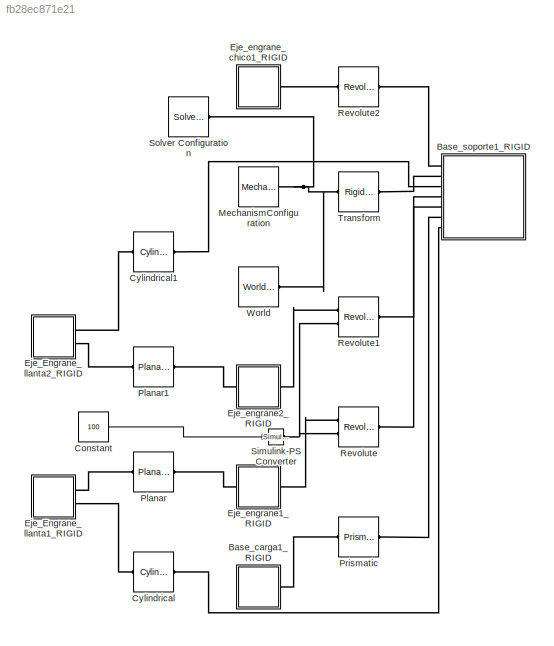
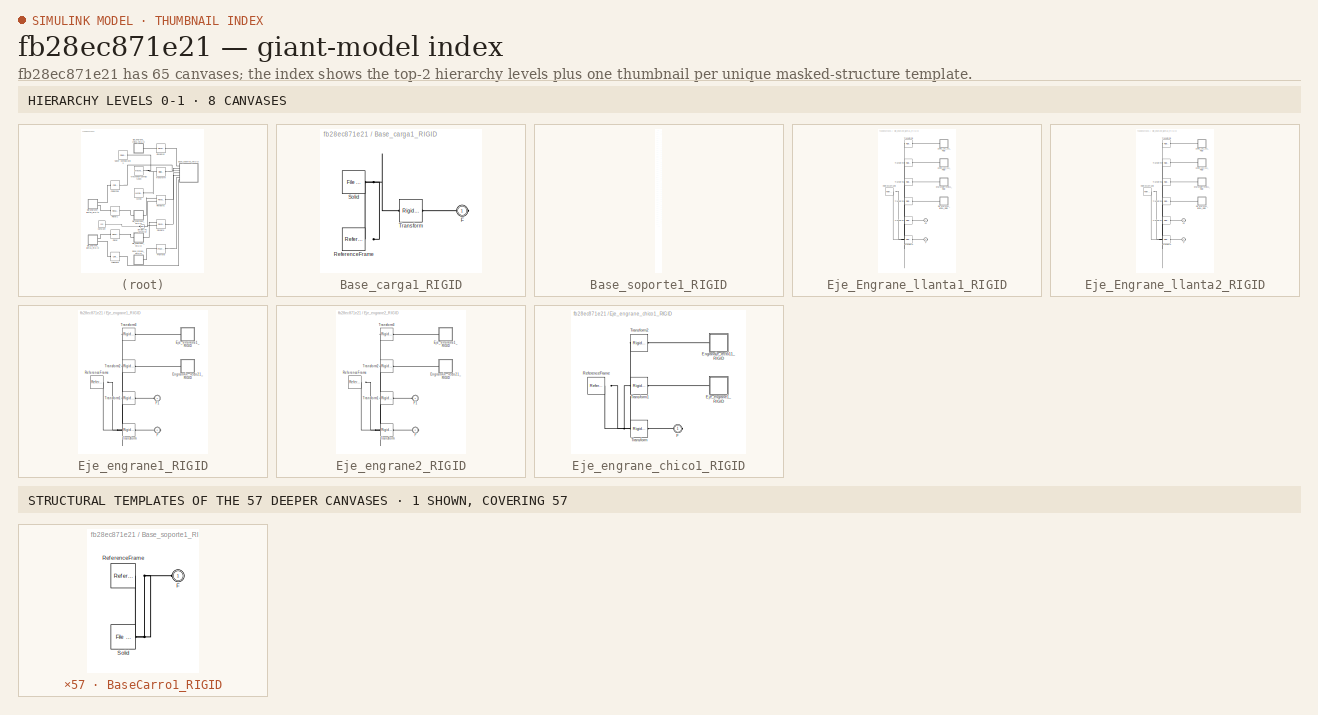
[diagram: thumbnail index - top-2 hierarchy levels (8 canvases) + 1 structural-template representatives of the remaining 57 canvases]
MODEL slx_fb28ec871e21
KIND model
CONFIG AbsTol = auto
CONFIG EnableMultiTasking = off
CONFIG FixedStep = auto
CONFIG MaxStep = auto
CONFIG MinStep = auto
CONFIG RelTol = 1e-3
CONFIG SampleTimeConstraint = Unconstrained
CONFIG SolverName = VariableStepAuto
CONFIG StartTime = 0.0
CONFIG StopTime = 10.0
WORKSPACE source: external: MATLAB File  (data not in archive)
BLOCK [SubSystem] Base_carga1_RIGID
  Ports = [0, 0, 0, 0, 0, 0, 1]
  RequestExecContextInheritance = off
BLOCK [PMIOPort] Base_carga1_RIGID/F
  Side = Right
BLOCK [Reference] Base_carga1_RIGID/ReferenceFrame  REF=sm_lib/Frames and
Transforms/Reference
Frame
  Ports = [0, 0, 0, 0, 0, 0, 1]
  SourceBlock = sm_lib/Frames and\nTransforms/Reference\nFrame
  SourceProductBaseCode = MS
  SourceType = Reference\nFrame
BLOCK [Reference] Base_carga1_RIGID/Solid  REF=sm_lib/Body Elements/File Solid
  Ports = [0, 0, 0, 0, 0, 0, 1]
  SourceBlock = sm_lib/Body Elements/File Solid
  SourceProductBaseCode = MS
  SourceType = File Solid
BLOCK [Reference] Base_carga1_RIGID/Transform  REF=sm_lib/Frames and
Transforms/Rigid
Transform
  Ports = [0, 0, 0, 0, 0, 1, 1]
  SourceBlock = sm_lib/Frames and\nTransforms/Rigid\nTransform
  SourceProductBaseCode = MS
  SourceType = Rigid\nTransform
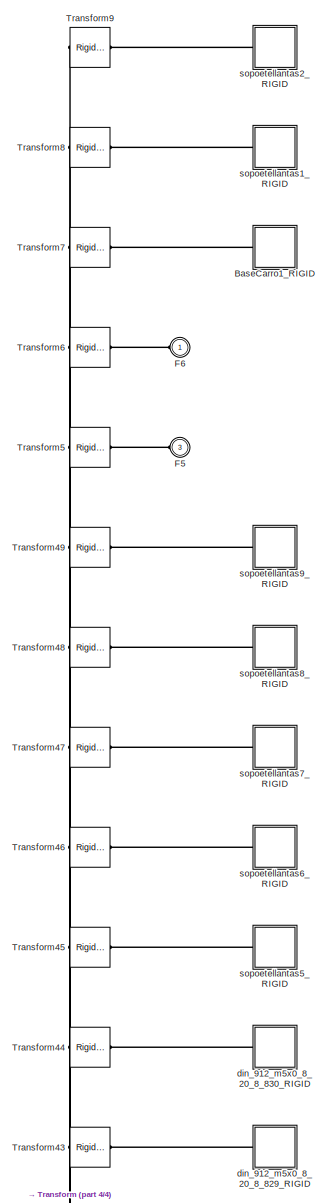
[diagram: Base_soporte1_RIGID - part 1/4, full width, top band]
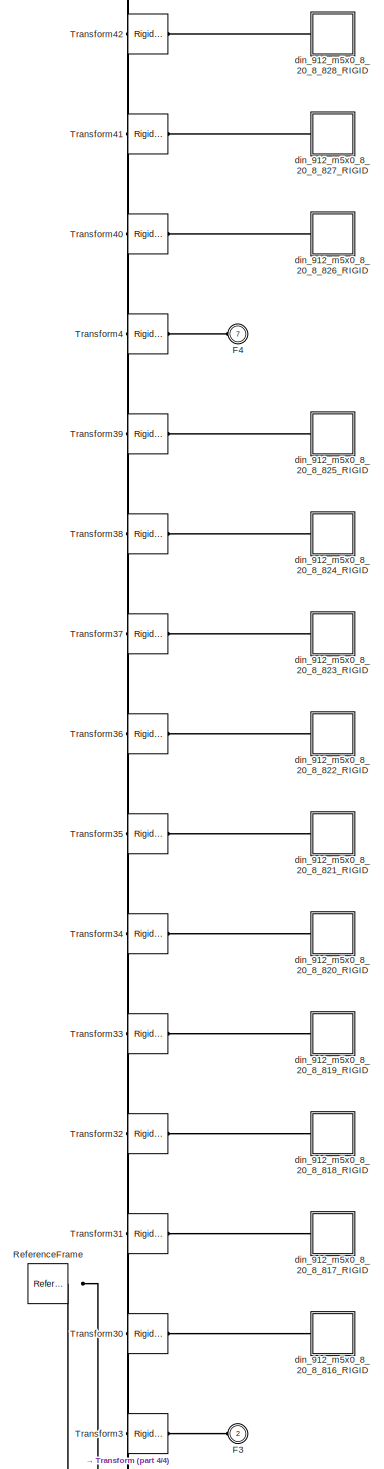
[diagram: Base_soporte1_RIGID - part 2/4, full width, top band]
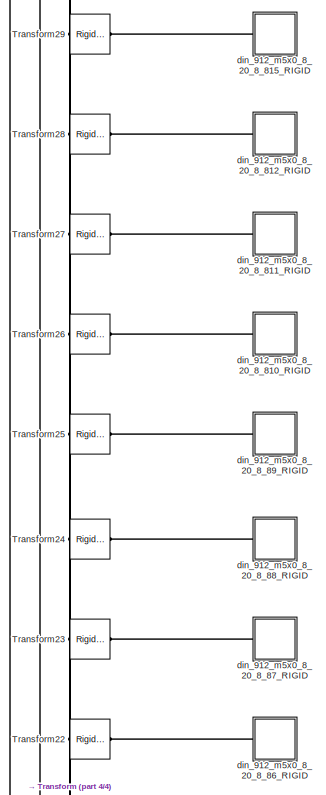
[diagram: Base_soporte1_RIGID - part 3/4, full width, middle band]
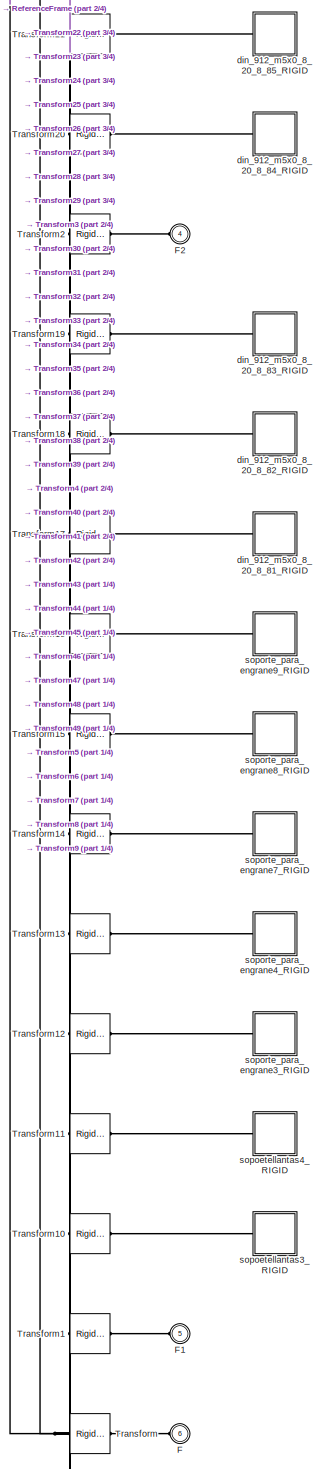
[diagram: Base_soporte1_RIGID - part 4/4, full width, middle band]
BLOCK [SubSystem] Base_soporte1_RIGID
  Ports = [0, 0, 0, 0, 0, 7]
  RequestExecContextInheritance = off
BLOCK [SubSystem] Base_soporte1_RIGID/BaseCarro1_RIGID
  Ports = [0, 0, 0, 0, 0, 1]
  RequestExecContextInheritance = off
BLOCK [PMIOPort] Base_soporte1_RIGID/BaseCarro1_RIGID/F
  Side = Left
BLOCK [Reference] Base_soporte1_RIGID/BaseCarro1_RIGID/ReferenceFrame  REF=sm_lib/Frames and
Transforms/Reference
Frame
  Ports = [0, 0, 0, 0, 0, 0, 1]
  SourceBlock = sm_lib/Frames and\nTransforms/Reference\nFrame
  SourceProductBaseCode = MS
  SourceType = Reference\nFrame
BLOCK [Reference] Base_soporte1_RIGID/BaseCarro1_RIGID/Solid  REF=sm_lib/Body Elements/File Solid
  Ports = [0, 0, 0, 0, 0, 0, 1]
  SourceBlock = sm_lib/Body Elements/File Solid
  SourceProductBaseCode = MS
  SourceType = File Solid
BLOCK [PMIOPort] Base_soporte1_RIGID/F
  Port = 6
  Side = Left
BLOCK [PMIOPort] Base_soporte1_RIGID/F1
  Port = 5
  Side = Left
BLOCK [PMIOPort] Base_soporte1_RIGID/F2
  Port = 4
  Side = Left
BLOCK [PMIOPort] Base_soporte1_RIGID/F3
  Port = 2
  Side = Left
BLOCK [PMIOPort] Base_soporte1_RIGID/F4
  Port = 7
  Side = Left
BLOCK [PMIOPort] Base_soporte1_RIGID/F5
  Port = 3
  Side = Left
BLOCK [PMIOPort] Base_soporte1_RIGID/F6
  Side = Left
BLOCK [Reference] Base_soporte1_RIGID/ReferenceFrame  REF=sm_lib/Frames and
Transforms/Reference
Frame
  Ports = [0, 0, 0, 0, 0, 0, 1]
  SourceBlock = sm_lib/Frames and\nTransforms/Reference\nFrame
  SourceProductBaseCode = MS
  SourceType = Reference\nFrame
BLOCK [Reference] Base_soporte1_RIGID/Transform  REF=sm_lib/Frames and
Transforms/Rigid
Transform
  Ports = [0, 0, 0, 0, 0, 1, 1]
  SourceBlock = sm_lib/Frames and\nTransforms/Rigid\nTransform
  SourceProductBaseCode = MS
  SourceType = Rigid\nTransform
BLOCK [Reference] Base_soporte1_RIGID/Transform1  REF=sm_lib/Frames and
Transforms/Rigid
Transform
  Ports = [0, 0, 0, 0, 0, 1, 1]
  SourceBlock = sm_lib/Frames and\nTransforms/Rigid\nTransform
  SourceProductBaseCode = MS
  SourceType = Rigid\nTransform
BLOCK [Reference] Base_soporte1_RIGID/Transform10  REF=sm_lib/Frames and
Transforms/Rigid
Transform
  Ports = [0, 0, 0, 0, 0, 1, 1]
  SourceBlock = sm_lib/Frames and\nTransforms/Rigid\nTransform
  SourceProductBaseCode = MS
  SourceType = Rigid\nTransform
BLOCK [Reference] Base_soporte1_RIGID/Transform11  REF=sm_lib/Frames and
Transforms/Rigid
Transform
  Ports = [0, 0, 0, 0, 0, 1, 1]
  SourceBlock = sm_lib/Frames and\nTransforms/Rigid\nTransform
  SourceProductBaseCode = MS
  SourceType = Rigid\nTransform
BLOCK [Reference] Base_soporte1_RIGID/Transform12  REF=sm_lib/Frames and
Transforms/Rigid
Transform
  Ports = [0, 0, 0, 0, 0, 1, 1]
  SourceBlock = sm_lib/Frames and\nTransforms/Rigid\nTransform
  SourceProductBaseCode = MS
  SourceType = Rigid\nTransform
BLOCK [Reference] Base_soporte1_RIGID/Transform13  REF=sm_lib/Frames and
Transforms/Rigid
Transform
  Ports = [0, 0, 0, 0, 0, 1, 1]
  SourceBlock = sm_lib/Frames and\nTransforms/Rigid\nTransform
  SourceProductBaseCode = MS
  SourceType = Rigid\nTransform
BLOCK [Reference] Base_soporte1_RIGID/Transform14  REF=sm_lib/Frames and
Transforms/Rigid
Transform
  Ports = [0, 0, 0, 0, 0, 1, 1]
  SourceBlock = sm_lib/Frames and\nTransforms/Rigid\nTransform
  SourceProductBaseCode = MS
  SourceType = Rigid\nTransform
BLOCK [Reference] Base_soporte1_RIGID/Transform15  REF=sm_lib/Frames and
Transforms/Rigid
Transform
  Ports = [0, 0, 0, 0, 0, 1, 1]
  SourceBlock = sm_lib/Frames and\nTransforms/Rigid\nTransform
  SourceProductBaseCode = MS
  SourceType = Rigid\nTransform
BLOCK [Reference] Base_soporte1_RIGID/Transform16  REF=sm_lib/Frames and
Transforms/Rigid
Transform
  Ports = [0, 0, 0, 0, 0, 1, 1]
  SourceBlock = sm_lib/Frames and\nTransforms/Rigid\nTransform
  SourceProductBaseCode = MS
  SourceType = Rigid\nTransform
BLOCK [Reference] Base_soporte1_RIGID/Transform17  REF=sm_lib/Frames and
Transforms/Rigid
Transform
  Ports = [0, 0, 0, 0, 0, 1, 1]
  SourceBlock = sm_lib/Frames and\nTransforms/Rigid\nTransform
  SourceProductBaseCode = MS
  SourceType = Rigid\nTransform
BLOCK [Reference] Base_soporte1_RIGID/Transform18  REF=sm_lib/Frames and
Transforms/Rigid
Transform
  Ports = [0, 0, 0, 0, 0, 1, 1]
  SourceBlock = sm_lib/Frames and\nTransforms/Rigid\nTransform
  SourceProductBaseCode = MS
  SourceType = Rigid\nTransform
BLOCK [Reference] Base_soporte1_RIGID/Transform19  REF=sm_lib/Frames and
Transforms/Rigid
Transform
  Ports = [0, 0, 0, 0, 0, 1, 1]
  SourceBlock = sm_lib/Frames and\nTransforms/Rigid\nTransform
  SourceProductBaseCode = MS
  SourceType = Rigid\nTransform
BLOCK [Reference] Base_soporte1_RIGID/Transform2  REF=sm_lib/Frames and
Transforms/Rigid
Transform
  Ports = [0, 0, 0, 0, 0, 1, 1]
  SourceBlock = sm_lib/Frames and\nTransforms/Rigid\nTransform
  SourceProductBaseCode = MS
  SourceType = Rigid\nTransform
BLOCK [Reference] Base_soporte1_RIGID/Transform20  REF=sm_lib/Frames and
Transforms/Rigid
Transform
  Ports = [0, 0, 0, 0, 0, 1, 1]
  SourceBlock = sm_lib/Frames and\nTransforms/Rigid\nTransform
  SourceProductBaseCode = MS
  SourceType = Rigid\nTransform
BLOCK [Reference] Base_soporte1_RIGID/Transform21  REF=sm_lib/Frames and
Transforms/Rigid
Transform
  Ports = [0, 0, 0, 0, 0, 1, 1]
  SourceBlock = sm_lib/Frames and\nTransforms/Rigid\nTransform
  SourceProductBaseCode = MS
  SourceType = Rigid\nTransform
BLOCK [Reference] Base_soporte1_RIGID/Transform22  REF=sm_lib/Frames and
Transforms/Rigid
Transform
  Ports = [0, 0, 0, 0, 0, 1, 1]
  SourceBlock = sm_lib/Frames and\nTransforms/Rigid\nTransform
  SourceProductBaseCode = MS
  SourceType = Rigid\nTransform
BLOCK [Reference] Base_soporte1_RIGID/Transform23  REF=sm_lib/Frames and
Transforms/Rigid
Transform
  Ports = [0, 0, 0, 0, 0, 1, 1]
  SourceBlock = sm_lib/Frames and\nTransforms/Rigid\nTransform
  SourceProductBaseCode = MS
  SourceType = Rigid\nTransform
BLOCK [Reference] Base_soporte1_RIGID/Transform24  REF=sm_lib/Frames and
Transforms/Rigid
Transform
  Ports = [0, 0, 0, 0, 0, 1, 1]
  SourceBlock = sm_lib/Frames and\nTransforms/Rigid\nTransform
  SourceProductBaseCode = MS
  SourceType = Rigid\nTransform
BLOCK [Reference] Base_soporte1_RIGID/Transform25  REF=sm_lib/Frames and
Transforms/Rigid
Transform
  Ports = [0, 0, 0, 0, 0, 1, 1]
  SourceBlock = sm_lib/Frames and\nTransforms/Rigid\nTransform
  SourceProductBaseCode = MS
  SourceType = Rigid\nTransform
BLOCK [Reference] Base_soporte1_RIGID/Transform26  REF=sm_lib/Frames and
Transforms/Rigid
Transform
  Ports = [0, 0, 0, 0, 0, 1, 1]
  SourceBlock = sm_lib/Frames and\nTransforms/Rigid\nTransform
  SourceProductBaseCode = MS
  SourceType = Rigid\nTransform
BLOCK [Reference] Base_soporte1_RIGID/Transform27  REF=sm_lib/Frames and
Transforms/Rigid
Transform
  Ports = [0, 0, 0, 0, 0, 1, 1]
  SourceBlock = sm_lib/Frames and\nTransforms/Rigid\nTransform
  SourceProductBaseCode = MS
  SourceType = Rigid\nTransform
BLOCK [Reference] Base_soporte1_RIGID/Transform28  REF=sm_lib/Frames and
Transforms/Rigid
Transform
  Ports = [0, 0, 0, 0, 0, 1, 1]
  SourceBlock = sm_lib/Frames and\nTransforms/Rigid\nTransform
  SourceProductBaseCode = MS
  SourceType = Rigid\nTransform
BLOCK [Reference] Base_soporte1_RIGID/Transform29  REF=sm_lib/Frames and
Transforms/Rigid
Transform
  Ports = [0, 0, 0, 0, 0, 1, 1]
  SourceBlock = sm_lib/Frames and\nTransforms/Rigid\nTransform
  SourceProductBaseCode = MS
  SourceType = Rigid\nTransform
BLOCK [Reference] Base_soporte1_RIGID/Transform3  REF=sm_lib/Frames and
Transforms/Rigid
Transform
  Ports = [0, 0, 0, 0, 0, 1, 1]
  SourceBlock = sm_lib/Frames and\nTransforms/Rigid\nTransform
  SourceProductBaseCode = MS
  SourceType = Rigid\nTransform
BLOCK [Reference] Base_soporte1_RIGID/Transform30  REF=sm_lib/Frames and
Transforms/Rigid
Transform
  Ports = [0, 0, 0, 0, 0, 1, 1]
  SourceBlock = sm_lib/Frames and\nTransforms/Rigid\nTransform
  SourceProductBaseCode = MS
  SourceType = Rigid\nTransform
BLOCK [Reference] Base_soporte1_RIGID/Transform31  REF=sm_lib/Frames and
Transforms/Rigid
Transform
  Ports = [0, 0, 0, 0, 0, 1, 1]
  SourceBlock = sm_lib/Frames and\nTransforms/Rigid\nTransform
  SourceProductBaseCode = MS
  SourceType = Rigid\nTransform
BLOCK [Reference] Base_soporte1_RIGID/Transform32  REF=sm_lib/Frames and
Transforms/Rigid
Transform
  Ports = [0, 0, 0, 0, 0, 1, 1]
  SourceBlock = sm_lib/Frames and\nTransforms/Rigid\nTransform
  SourceProductBaseCode = MS
  SourceType = Rigid\nTransform
BLOCK [Reference] Base_soporte1_RIGID/Transform33  REF=sm_lib/Frames and
Transforms/Rigid
Transform
  Ports = [0, 0, 0, 0, 0, 1, 1]
  SourceBlock = sm_lib/Frames and\nTransforms/Rigid\nTransform
  SourceProductBaseCode = MS
  SourceType = Rigid\nTransform
BLOCK [Reference] Base_soporte1_RIGID/Transform34  REF=sm_lib/Frames and
Transforms/Rigid
Transform
  Ports = [0, 0, 0, 0, 0, 1, 1]
  SourceBlock = sm_lib/Frames and\nTransforms/Rigid\nTransform
  SourceProductBaseCode = MS
  SourceType = Rigid\nTransform
BLOCK [Reference] Base_soporte1_RIGID/Transform35  REF=sm_lib/Frames and
Transforms/Rigid
Transform
  Ports = [0, 0, 0, 0, 0, 1, 1]
  SourceBlock = sm_lib/Frames and\nTransforms/Rigid\nTransform
  SourceProductBaseCode = MS
  SourceType = Rigid\nTransform
BLOCK [Reference] Base_soporte1_RIGID/Transform36  REF=sm_lib/Frames and
Transforms/Rigid
Transform
  Ports = [0, 0, 0, 0, 0, 1, 1]
  SourceBlock = sm_lib/Frames and\nTransforms/Rigid\nTransform
  SourceProductBaseCode = MS
  SourceType = Rigid\nTransform
BLOCK [Reference] Base_soporte1_RIGID/Transform37  REF=sm_lib/Frames and
Transforms/Rigid
Transform
  Ports = [0, 0, 0, 0, 0, 1, 1]
  SourceBlock = sm_lib/Frames and\nTransforms/Rigid\nTransform
  SourceProductBaseCode = MS
  SourceType = Rigid\nTransform
BLOCK [Reference] Base_soporte1_RIGID/Transform38  REF=sm_lib/Frames and
Transforms/Rigid
Transform
  Ports = [0, 0, 0, 0, 0, 1, 1]
  SourceBlock = sm_lib/Frames and\nTransforms/Rigid\nTransform
  SourceProductBaseCode = MS
  SourceType = Rigid\nTransform
BLOCK [Reference] Base_soporte1_RIGID/Transform39  REF=sm_lib/Frames and
Transforms/Rigid
Transform
  Ports = [0, 0, 0, 0, 0, 1, 1]
  SourceBlock = sm_lib/Frames and\nTransforms/Rigid\nTransform
  SourceProductBaseCode = MS
  SourceType = Rigid\nTransform
BLOCK [Reference] Base_soporte1_RIGID/Transform4  REF=sm_lib/Frames and
Transforms/Rigid
Transform
  Ports = [0, 0, 0, 0, 0, 1, 1]
  SourceBlock = sm_lib/Frames and\nTransforms/Rigid\nTransform
  SourceProductBaseCode = MS
  SourceType = Rigid\nTransform
BLOCK [Reference] Base_soporte1_RIGID/Transform40  REF=sm_lib/Frames and
Transforms/Rigid
Transform
  Ports = [0, 0, 0, 0, 0, 1, 1]
  SourceBlock = sm_lib/Frames and\nTransforms/Rigid\nTransform
  SourceProductBaseCode = MS
  SourceType = Rigid\nTransform
BLOCK [Reference] Base_soporte1_RIGID/Transform41  REF=sm_lib/Frames and
Transforms/Rigid
Transform
  Ports = [0, 0, 0, 0, 0, 1, 1]
  SourceBlock = sm_lib/Frames and\nTransforms/Rigid\nTransform
  SourceProductBaseCode = MS
  SourceType = Rigid\nTransform
BLOCK [Reference] Base_soporte1_RIGID/Transform42  REF=sm_lib/Frames and
Transforms/Rigid
Transform
  Ports = [0, 0, 0, 0, 0, 1, 1]
  SourceBlock = sm_lib/Frames and\nTransforms/Rigid\nTransform
  SourceProductBaseCode = MS
  SourceType = Rigid\nTransform
BLOCK [Reference] Base_soporte1_RIGID/Transform43  REF=sm_lib/Frames and
Transforms/Rigid
Transform
  Ports = [0, 0, 0, 0, 0, 1, 1]
  SourceBlock = sm_lib/Frames and\nTransforms/Rigid\nTransform
  SourceProductBaseCode = MS
  SourceType = Rigid\nTransform
BLOCK [Reference] Base_soporte1_RIGID/Transform44  REF=sm_lib/Frames and
Transforms/Rigid
Transform
  Ports = [0, 0, 0, 0, 0, 1, 1]
  SourceBlock = sm_lib/Frames and\nTransforms/Rigid\nTransform
  SourceProductBaseCode = MS
  SourceType = Rigid\nTransform
BLOCK [Reference] Base_soporte1_RIGID/Transform45  REF=sm_lib/Frames and
Transforms/Rigid
Transform
  Ports = [0, 0, 0, 0, 0, 1, 1]
  SourceBlock = sm_lib/Frames and\nTransforms/Rigid\nTransform
  SourceProductBaseCode = MS
  SourceType = Rigid\nTransform
BLOCK [Reference] Base_soporte1_RIGID/Transform46  REF=sm_lib/Frames and
Transforms/Rigid
Transform
  Ports = [0, 0, 0, 0, 0, 1, 1]
  SourceBlock = sm_lib/Frames and\nTransforms/Rigid\nTransform
  SourceProductBaseCode = MS
  SourceType = Rigid\nTransform
BLOCK [Reference] Base_soporte1_RIGID/Transform47  REF=sm_lib/Frames and
Transforms/Rigid
Transform
  Ports = [0, 0, 0, 0, 0, 1, 1]
  SourceBlock = sm_lib/Frames and\nTransforms/Rigid\nTransform
  SourceProductBaseCode = MS
  SourceType = Rigid\nTransform
BLOCK [Reference] Base_soporte1_RIGID/Transform48  REF=sm_lib/Frames and
Transforms/Rigid
Transform
  Ports = [0, 0, 0, 0, 0, 1, 1]
  SourceBlock = sm_lib/Frames and\nTransforms/Rigid\nTransform
  SourceProductBaseCode = MS
  SourceType = Rigid\nTransform
BLOCK [Reference] Base_soporte1_RIGID/Transform49  REF=sm_lib/Frames and
Transforms/Rigid
Transform
  Ports = [0, 0, 0, 0, 0, 1, 1]
  SourceBlock = sm_lib/Frames and\nTransforms/Rigid\nTransform
  SourceProductBaseCode = MS
  SourceType = Rigid\nTransform
BLOCK [Reference] Base_soporte1_RIGID/Transform5  REF=sm_lib/Frames and
Transforms/Rigid
Transform
  Ports = [0, 0, 0, 0, 0, 1, 1]
  SourceBlock = sm_lib/Frames and\nTransforms/Rigid\nTransform
  SourceProductBaseCode = MS
  SourceType = Rigid\nTransform
BLOCK [Reference] Base_soporte1_RIGID/Transform6  REF=sm_lib/Frames and
Transforms/Rigid
Transform
  Ports = [0, 0, 0, 0, 0, 1, 1]
  SourceBlock = sm_lib/Frames and\nTransforms/Rigid\nTransform
  SourceProductBaseCode = MS
  SourceType = Rigid\nTransform
BLOCK [Reference] Base_soporte1_RIGID/Transform7  REF=sm_lib/Frames and
Transforms/Rigid
Transform
  Ports = [0, 0, 0, 0, 0, 1, 1]
  SourceBlock = sm_lib/Frames and\nTransforms/Rigid\nTransform
  SourceProductBaseCode = MS
  SourceType = Rigid\nTransform
BLOCK [Reference] Base_soporte1_RIGID/Transform8  REF=sm_lib/Frames and
Transforms/Rigid
Transform
  Ports = [0, 0, 0, 0, 0, 1, 1]
  SourceBlock = sm_lib/Frames and\nTransforms/Rigid\nTransform
  SourceProductBaseCode = MS
  SourceType = Rigid\nTransform
BLOCK [Reference] Base_soporte1_RIGID/Transform9  REF=sm_lib/Frames and
Transforms/Rigid
Transform
  Ports = [0, 0, 0, 0, 0, 1, 1]
  SourceBlock = sm_lib/Frames and\nTransforms/Rigid\nTransform
  SourceProductBaseCode = MS
  SourceType = Rigid\nTransform
BLOCK [SubSystem] Base_soporte1_RIGID/din_912_m5x0_8_20_8_810_RIGID
  Ports = [0, 0, 0, 0, 0, 1]
  RequestExecContextInheritance = off
BLOCK [PMIOPort] Base_soporte1_RIGID/din_912_m5x0_8_20_8_810_RIGID/F
  Side = Left
BLOCK [Reference] Base_soporte1_RIGID/din_912_m5x0_8_20_8_810_RIGID/ReferenceFrame  REF=sm_lib/Frames and
Transforms/Reference
Frame
  Ports = [0, 0, 0, 0, 0, 0, 1]
  SourceBlock = sm_lib/Frames and\nTransforms/Reference\nFrame
  SourceProductBaseCode = MS
  SourceType = Reference\nFrame
BLOCK [Reference] Base_soporte1_RIGID/din_912_m5x0_8_20_8_810_RIGID/Solid  REF=sm_lib/Body Elements/File Solid
  Ports = [0, 0, 0, 0, 0, 0, 1]
  SourceBlock = sm_lib/Body Elements/File Solid
  SourceProductBaseCode = MS
  SourceType = File Solid
BLOCK [SubSystem] Base_soporte1_RIGID/din_912_m5x0_8_20_8_811_RIGID
  Ports = [0, 0, 0, 0, 0, 1]
  RequestExecContextInheritance = off
BLOCK [PMIOPort] Base_soporte1_RIGID/din_912_m5x0_8_20_8_811_RIGID/F
  Side = Left
BLOCK [Reference] Base_soporte1_RIGID/din_912_m5x0_8_20_8_811_RIGID/ReferenceFrame  REF=sm_lib/Frames and
Transforms/Reference
Frame
  Ports = [0, 0, 0, 0, 0, 0, 1]
  SourceBlock = sm_lib/Frames and\nTransforms/Reference\nFrame
  SourceProductBaseCode = MS
  SourceType = Reference\nFrame
BLOCK [Reference] Base_soporte1_RIGID/din_912_m5x0_8_20_8_811_RIGID/Solid  REF=sm_lib/Body Elements/File Solid
  Ports = [0, 0, 0, 0, 0, 0, 1]
  SourceBlock = sm_lib/Body Elements/File Solid
  SourceProductBaseCode = MS
  SourceType = File Solid
BLOCK [SubSystem] Base_soporte1_RIGID/din_912_m5x0_8_20_8_812_RIGID
  Ports = [0, 0, 0, 0, 0, 1]
  RequestExecContextInheritance = off
BLOCK [PMIOPort] Base_soporte1_RIGID/din_912_m5x0_8_20_8_812_RIGID/F
  Side = Left
BLOCK [Reference] Base_soporte1_RIGID/din_912_m5x0_8_20_8_812_RIGID/ReferenceFrame  REF=sm_lib/Frames and
Transforms/Reference
Frame
  Ports = [0, 0, 0, 0, 0, 0, 1]
  SourceBlock = sm_lib/Frames and\nTransforms/Reference\nFrame
  SourceProductBaseCode = MS
  SourceType = Reference\nFrame
BLOCK [Reference] Base_soporte1_RIGID/din_912_m5x0_8_20_8_812_RIGID/Solid  REF=sm_lib/Body Elements/File Solid
  Ports = [0, 0, 0, 0, 0, 0, 1]
  SourceBlock = sm_lib/Body Elements/File Solid
  SourceProductBaseCode = MS
  SourceType = File Solid
BLOCK [SubSystem] Base_soporte1_RIGID/din_912_m5x0_8_20_8_815_RIGID
  Ports = [0, 0, 0, 0, 0, 1]
  RequestExecContextInheritance = off
BLOCK [PMIOPort] Base_soporte1_RIGID/din_912_m5x0_8_20_8_815_RIGID/F
  Side = Left
BLOCK [Reference] Base_soporte1_RIGID/din_912_m5x0_8_20_8_815_RIGID/ReferenceFrame  REF=sm_lib/Frames and
Transforms/Reference
Frame
  Ports = [0, 0, 0, 0, 0, 0, 1]
  SourceBlock = sm_lib/Frames and\nTransforms/Reference\nFrame
  SourceProductBaseCode = MS
  SourceType = Reference\nFrame
BLOCK [Reference] Base_soporte1_RIGID/din_912_m5x0_8_20_8_815_RIGID/Solid  REF=sm_lib/Body Elements/File Solid
  Ports = [0, 0, 0, 0, 0, 0, 1]
  SourceBlock = sm_lib/Body Elements/File Solid
  SourceProductBaseCode = MS
  SourceType = File Solid
BLOCK [SubSystem] Base_soporte1_RIGID/din_912_m5x0_8_20_8_816_RIGID
  Ports = [0, 0, 0, 0, 0, 1]
  RequestExecContextInheritance = off
BLOCK [PMIOPort] Base_soporte1_RIGID/din_912_m5x0_8_20_8_816_RIGID/F
  Side = Left
BLOCK [Reference] Base_soporte1_RIGID/din_912_m5x0_8_20_8_816_RIGID/ReferenceFrame  REF=sm_lib/Frames and
Transforms/Reference
Frame
  Ports = [0, 0, 0, 0, 0, 0, 1]
  SourceBlock = sm_lib/Frames and\nTransforms/Reference\nFrame
  SourceProductBaseCode = MS
  SourceType = Reference\nFrame
BLOCK [Reference] Base_soporte1_RIGID/din_912_m5x0_8_20_8_816_RIGID/Solid  REF=sm_lib/Body Elements/File Solid
  Ports = [0, 0, 0, 0, 0, 0, 1]
  SourceBlock = sm_lib/Body Elements/File Solid
  SourceProductBaseCode = MS
  SourceType = File Solid
BLOCK [SubSystem] Base_soporte1_RIGID/din_912_m5x0_8_20_8_817_RIGID
  Ports = [0, 0, 0, 0, 0, 1]
  RequestExecContextInheritance = off
BLOCK [PMIOPort] Base_soporte1_RIGID/din_912_m5x0_8_20_8_817_RIGID/F
  Side = Left
BLOCK [Reference] Base_soporte1_RIGID/din_912_m5x0_8_20_8_817_RIGID/ReferenceFrame  REF=sm_lib/Frames and
Transforms/Reference
Frame
  Ports = [0, 0, 0, 0, 0, 0, 1]
  SourceBlock = sm_lib/Frames and\nTransforms/Reference\nFrame
  SourceProductBaseCode = MS
  SourceType = Reference\nFrame
BLOCK [Reference] Base_soporte1_RIGID/din_912_m5x0_8_20_8_817_RIGID/Solid  REF=sm_lib/Body Elements/File Solid
  Ports = [0, 0, 0, 0, 0, 0, 1]
  SourceBlock = sm_lib/Body Elements/File Solid
  SourceProductBaseCode = MS
  SourceType = File Solid
BLOCK [SubSystem] Base_soporte1_RIGID/din_912_m5x0_8_20_8_818_RIGID
  Ports = [0, 0, 0, 0, 0, 1]
  RequestExecContextInheritance = off
BLOCK [PMIOPort] Base_soporte1_RIGID/din_912_m5x0_8_20_8_818_RIGID/F
  Side = Left
BLOCK [Reference] Base_soporte1_RIGID/din_912_m5x0_8_20_8_818_RIGID/ReferenceFrame  REF=sm_lib/Frames and
Transforms/Reference
Frame
  Ports = [0, 0, 0, 0, 0, 0, 1]
  SourceBlock = sm_lib/Frames and\nTransforms/Reference\nFrame
  SourceProductBaseCode = MS
  SourceType = Reference\nFrame
BLOCK [Reference] Base_soporte1_RIGID/din_912_m5x0_8_20_8_818_RIGID/Solid  REF=sm_lib/Body Elements/File Solid
  Ports = [0, 0, 0, 0, 0, 0, 1]
  SourceBlock = sm_lib/Body Elements/File Solid
  SourceProductBaseCode = MS
  SourceType = File Solid
BLOCK [SubSystem] Base_soporte1_RIGID/din_912_m5x0_8_20_8_819_RIGID
  Ports = [0, 0, 0, 0, 0, 1]
  RequestExecContextInheritance = off
BLOCK [PMIOPort] Base_soporte1_RIGID/din_912_m5x0_8_20_8_819_RIGID/F
  Side = Left
BLOCK [Reference] Base_soporte1_RIGID/din_912_m5x0_8_20_8_819_RIGID/ReferenceFrame  REF=sm_lib/Frames and
Transforms/Reference
Frame
  Ports = [0, 0, 0, 0, 0, 0, 1]
  SourceBlock = sm_lib/Frames and\nTransforms/Reference\nFrame
  SourceProductBaseCode = MS
  SourceType = Reference\nFrame
BLOCK [Reference] Base_soporte1_RIGID/din_912_m5x0_8_20_8_819_RIGID/Solid  REF=sm_lib/Body Elements/File Solid
  Ports = [0, 0, 0, 0, 0, 0, 1]
  SourceBlock = sm_lib/Body Elements/File Solid
  SourceProductBaseCode = MS
  SourceType = File Solid
BLOCK [SubSystem] Base_soporte1_RIGID/din_912_m5x0_8_20_8_81_RIGID
  Ports = [0, 0, 0, 0, 0, 1]
  RequestExecContextInheritance = off
BLOCK [PMIOPort] Base_soporte1_RIGID/din_912_m5x0_8_20_8_81_RIGID/F
  Side = Left
BLOCK [Reference] Base_soporte1_RIGID/din_912_m5x0_8_20_8_81_RIGID/ReferenceFrame  REF=sm_lib/Frames and
Transforms/Reference
Frame
  Ports = [0, 0, 0, 0, 0, 0, 1]
  SourceBlock = sm_lib/Frames and\nTransforms/Reference\nFrame
  SourceProductBaseCode = MS
  SourceType = Reference\nFrame
BLOCK [Reference] Base_soporte1_RIGID/din_912_m5x0_8_20_8_81_RIGID/Solid  REF=sm_lib/Body Elements/File Solid
  Ports = [0, 0, 0, 0, 0, 0, 1]
  SourceBlock = sm_lib/Body Elements/File Solid
  SourceProductBaseCode = MS
  SourceType = File Solid
BLOCK [SubSystem] Base_soporte1_RIGID/din_912_m5x0_8_20_8_820_RIGID
  Ports = [0, 0, 0, 0, 0, 1]
  RequestExecContextInheritance = off
BLOCK [PMIOPort] Base_soporte1_RIGID/din_912_m5x0_8_20_8_820_RIGID/F
  Side = Left
BLOCK [Reference] Base_soporte1_RIGID/din_912_m5x0_8_20_8_820_RIGID/ReferenceFrame  REF=sm_lib/Frames and
Transforms/Reference
Frame
  Ports = [0, 0, 0, 0, 0, 0, 1]
  SourceBlock = sm_lib/Frames and\nTransforms/Reference\nFrame
  SourceProductBaseCode = MS
  SourceType = Reference\nFrame
BLOCK [Reference] Base_soporte1_RIGID/din_912_m5x0_8_20_8_820_RIGID/Solid  REF=sm_lib/Body Elements/File Solid
  Ports = [0, 0, 0, 0, 0, 0, 1]
  SourceBlock = sm_lib/Body Elements/File Solid
  SourceProductBaseCode = MS
  SourceType = File Solid
BLOCK [SubSystem] Base_soporte1_RIGID/din_912_m5x0_8_20_8_821_RIGID
  Ports = [0, 0, 0, 0, 0, 1]
  RequestExecContextInheritance = off
BLOCK [PMIOPort] Base_soporte1_RIGID/din_912_m5x0_8_20_8_821_RIGID/F
  Side = Left
BLOCK [Reference] Base_soporte1_RIGID/din_912_m5x0_8_20_8_821_RIGID/ReferenceFrame  REF=sm_lib/Frames and
Transforms/Reference
Frame
  Ports = [0, 0, 0, 0, 0, 0, 1]
  SourceBlock = sm_lib/Frames and\nTransforms/Reference\nFrame
  SourceProductBaseCode = MS
  SourceType = Reference\nFrame
BLOCK [Reference] Base_soporte1_RIGID/din_912_m5x0_8_20_8_821_RIGID/Solid  REF=sm_lib/Body Elements/File Solid
  Ports = [0, 0, 0, 0, 0, 0, 1]
  SourceBlock = sm_lib/Body Elements/File Solid
  SourceProductBaseCode = MS
  SourceType = File Solid
BLOCK [SubSystem] Base_soporte1_RIGID/din_912_m5x0_8_20_8_822_RIGID
  Ports = [0, 0, 0, 0, 0, 1]
  RequestExecContextInheritance = off
BLOCK [PMIOPort] Base_soporte1_RIGID/din_912_m5x0_8_20_8_822_RIGID/F
  Side = Left
BLOCK [Reference] Base_soporte1_RIGID/din_912_m5x0_8_20_8_822_RIGID/ReferenceFrame  REF=sm_lib/Frames and
Transforms/Reference
Frame
  Ports = [0, 0, 0, 0, 0, 0, 1]
  SourceBlock = sm_lib/Frames and\nTransforms/Reference\nFrame
  SourceProductBaseCode = MS
  SourceType = Reference\nFrame
BLOCK [Reference] Base_soporte1_RIGID/din_912_m5x0_8_20_8_822_RIGID/Solid  REF=sm_lib/Body Elements/File Solid
  Ports = [0, 0, 0, 0, 0, 0, 1]
  SourceBlock = sm_lib/Body Elements/File Solid
  SourceProductBaseCode = MS
  SourceType = File Solid
BLOCK [SubSystem] Base_soporte1_RIGID/din_912_m5x0_8_20_8_823_RIGID
  Ports = [0, 0, 0, 0, 0, 1]
  RequestExecContextInheritance = off
BLOCK [PMIOPort] Base_soporte1_RIGID/din_912_m5x0_8_20_8_823_RIGID/F
  Side = Left
BLOCK [Reference] Base_soporte1_RIGID/din_912_m5x0_8_20_8_823_RIGID/ReferenceFrame  REF=sm_lib/Frames and
Transforms/Reference
Frame
  Ports = [0, 0, 0, 0, 0, 0, 1]
  SourceBlock = sm_lib/Frames and\nTransforms/Reference\nFrame
  SourceProductBaseCode = MS
  SourceType = Reference\nFrame
BLOCK [Reference] Base_soporte1_RIGID/din_912_m5x0_8_20_8_823_RIGID/Solid  REF=sm_lib/Body Elements/File Solid
  Ports = [0, 0, 0, 0, 0, 0, 1]
  SourceBlock = sm_lib/Body Elements/File Solid
  SourceProductBaseCode = MS
  SourceType = File Solid
BLOCK [SubSystem] Base_soporte1_RIGID/din_912_m5x0_8_20_8_824_RIGID
  Ports = [0, 0, 0, 0, 0, 1]
  RequestExecContextInheritance = off
BLOCK [PMIOPort] Base_soporte1_RIGID/din_912_m5x0_8_20_8_824_RIGID/F
  Side = Left
BLOCK [Reference] Base_soporte1_RIGID/din_912_m5x0_8_20_8_824_RIGID/ReferenceFrame  REF=sm_lib/Frames and
Transforms/Reference
Frame
  Ports = [0, 0, 0, 0, 0, 0, 1]
  SourceBlock = sm_lib/Frames and\nTransforms/Reference\nFrame
  SourceProductBaseCode = MS
  SourceType = Reference\nFrame
BLOCK [Reference] Base_soporte1_RIGID/din_912_m5x0_8_20_8_824_RIGID/Solid  REF=sm_lib/Body Elements/File Solid
  Ports = [0, 0, 0, 0, 0, 0, 1]
  SourceBlock = sm_lib/Body Elements/File Solid
  SourceProductBaseCode = MS
  SourceType = File Solid
BLOCK [SubSystem] Base_soporte1_RIGID/din_912_m5x0_8_20_8_825_RIGID
  Ports = [0, 0, 0, 0, 0, 1]
  RequestExecContextInheritance = off
BLOCK [PMIOPort] Base_soporte1_RIGID/din_912_m5x0_8_20_8_825_RIGID/F
  Side = Left
BLOCK [Reference] Base_soporte1_RIGID/din_912_m5x0_8_20_8_825_RIGID/ReferenceFrame  REF=sm_lib/Frames and
Transforms/Reference
Frame
  Ports = [0, 0, 0, 0, 0, 0, 1]
  SourceBlock = sm_lib/Frames and\nTransforms/Reference\nFrame
  SourceProductBaseCode = MS
  SourceType = Reference\nFrame
BLOCK [Reference] Base_soporte1_RIGID/din_912_m5x0_8_20_8_825_RIGID/Solid  REF=sm_lib/Body Elements/File Solid
  Ports = [0, 0, 0, 0, 0, 0, 1]
  SourceBlock = sm_lib/Body Elements/File Solid
  SourceProductBaseCode = MS
  SourceType = File Solid
BLOCK [SubSystem] Base_soporte1_RIGID/din_912_m5x0_8_20_8_826_RIGID
  Ports = [0, 0, 0, 0, 0, 1]
  RequestExecContextInheritance = off
BLOCK [PMIOPort] Base_soporte1_RIGID/din_912_m5x0_8_20_8_826_RIGID/F
  Side = Left
BLOCK [Reference] Base_soporte1_RIGID/din_912_m5x0_8_20_8_826_RIGID/ReferenceFrame  REF=sm_lib/Frames and
Transforms/Reference
Frame
  Ports = [0, 0, 0, 0, 0, 0, 1]
  SourceBlock = sm_lib/Frames and\nTransforms/Reference\nFrame
  SourceProductBaseCode = MS
  SourceType = Reference\nFrame
BLOCK [Reference] Base_soporte1_RIGID/din_912_m5x0_8_20_8_826_RIGID/Solid  REF=sm_lib/Body Elements/File Solid
  Ports = [0, 0, 0, 0, 0, 0, 1]
  SourceBlock = sm_lib/Body Elements/File Solid
  SourceProductBaseCode = MS
  SourceType = File Solid
BLOCK [SubSystem] Base_soporte1_RIGID/din_912_m5x0_8_20_8_827_RIGID
  Ports = [0, 0, 0, 0, 0, 1]
  RequestExecContextInheritance = off
BLOCK [PMIOPort] Base_soporte1_RIGID/din_912_m5x0_8_20_8_827_RIGID/F
  Side = Left
BLOCK [Reference] Base_soporte1_RIGID/din_912_m5x0_8_20_8_827_RIGID/ReferenceFrame  REF=sm_lib/Frames and
Transforms/Reference
Frame
  Ports = [0, 0, 0, 0, 0, 0, 1]
  SourceBlock = sm_lib/Frames and\nTransforms/Reference\nFrame
  SourceProductBaseCode = MS
  SourceType = Reference\nFrame
BLOCK [Reference] Base_soporte1_RIGID/din_912_m5x0_8_20_8_827_RIGID/Solid  REF=sm_lib/Body Elements/File Solid
  Ports = [0, 0, 0, 0, 0, 0, 1]
  SourceBlock = sm_lib/Body Elements/File Solid
  SourceProductBaseCode = MS
  SourceType = File Solid
BLOCK [SubSystem] Base_soporte1_RIGID/din_912_m5x0_8_20_8_828_RIGID
  Ports = [0, 0, 0, 0, 0, 1]
  RequestExecContextInheritance = off
BLOCK [PMIOPort] Base_soporte1_RIGID/din_912_m5x0_8_20_8_828_RIGID/F
  Side = Left
BLOCK [Reference] Base_soporte1_RIGID/din_912_m5x0_8_20_8_828_RIGID/ReferenceFrame  REF=sm_lib/Frames and
Transforms/Reference
Frame
  Ports = [0, 0, 0, 0, 0, 0, 1]
  SourceBlock = sm_lib/Frames and\nTransforms/Reference\nFrame
  SourceProductBaseCode = MS
  SourceType = Reference\nFrame
BLOCK [Reference] Base_soporte1_RIGID/din_912_m5x0_8_20_8_828_RIGID/Solid  REF=sm_lib/Body Elements/File Solid
  Ports = [0, 0, 0, 0, 0, 0, 1]
  SourceBlock = sm_lib/Body Elements/File Solid
  SourceProductBaseCode = MS
  SourceType = File Solid
BLOCK [SubSystem] Base_soporte1_RIGID/din_912_m5x0_8_20_8_829_RIGID
  Ports = [0, 0, 0, 0, 0, 1]
  RequestExecContextInheritance = off
BLOCK [PMIOPort] Base_soporte1_RIGID/din_912_m5x0_8_20_8_829_RIGID/F
  Side = Left
BLOCK [Reference] Base_soporte1_RIGID/din_912_m5x0_8_20_8_829_RIGID/ReferenceFrame  REF=sm_lib/Frames and
Transforms/Reference
Frame
  Ports = [0, 0, 0, 0, 0, 0, 1]
  SourceBlock = sm_lib/Frames and\nTransforms/Reference\nFrame
  SourceProductBaseCode = MS
  SourceType = Reference\nFrame
BLOCK [Reference] Base_soporte1_RIGID/din_912_m5x0_8_20_8_829_RIGID/Solid  REF=sm_lib/Body Elements/File Solid
  Ports = [0, 0, 0, 0, 0, 0, 1]
  SourceBlock = sm_lib/Body Elements/File Solid
  SourceProductBaseCode = MS
  SourceType = File Solid
BLOCK [SubSystem] Base_soporte1_RIGID/din_912_m5x0_8_20_8_82_RIGID
  Ports = [0, 0, 0, 0, 0, 1]
  RequestExecContextInheritance = off
BLOCK [PMIOPort] Base_soporte1_RIGID/din_912_m5x0_8_20_8_82_RIGID/F
  Side = Left
BLOCK [Reference] Base_soporte1_RIGID/din_912_m5x0_8_20_8_82_RIGID/ReferenceFrame  REF=sm_lib/Frames and
Transforms/Reference
Frame
  Ports = [0, 0, 0, 0, 0, 0, 1]
  SourceBlock = sm_lib/Frames and\nTransforms/Reference\nFrame
  SourceProductBaseCode = MS
  SourceType = Reference\nFrame
BLOCK [Reference] Base_soporte1_RIGID/din_912_m5x0_8_20_8_82_RIGID/Solid  REF=sm_lib/Body Elements/File Solid
  Ports = [0, 0, 0, 0, 0, 0, 1]
  SourceBlock = sm_lib/Body Elements/File Solid
  SourceProductBaseCode = MS
  SourceType = File Solid
BLOCK [SubSystem] Base_soporte1_RIGID/din_912_m5x0_8_20_8_830_RIGID
  Ports = [0, 0, 0, 0, 0, 1]
  RequestExecContextInheritance = off
BLOCK [PMIOPort] Base_soporte1_RIGID/din_912_m5x0_8_20_8_830_RIGID/F
  Side = Left
BLOCK [Reference] Base_soporte1_RIGID/din_912_m5x0_8_20_8_830_RIGID/ReferenceFrame  REF=sm_lib/Frames and
Transforms/Reference
Frame
  Ports = [0, 0, 0, 0, 0, 0, 1]
  SourceBlock = sm_lib/Frames and\nTransforms/Reference\nFrame
  SourceProductBaseCode = MS
  SourceType = Reference\nFrame
BLOCK [Reference] Base_soporte1_RIGID/din_912_m5x0_8_20_8_830_RIGID/Solid  REF=sm_lib/Body Elements/File Solid
  Ports = [0, 0, 0, 0, 0, 0, 1]
  SourceBlock = sm_lib/Body Elements/File Solid
  SourceProductBaseCode = MS
  SourceType = File Solid
BLOCK [SubSystem] Base_soporte1_RIGID/din_912_m5x0_8_20_8_83_RIGID
  Ports = [0, 0, 0, 0, 0, 1]
  RequestExecContextInheritance = off
BLOCK [PMIOPort] Base_soporte1_RIGID/din_912_m5x0_8_20_8_83_RIGID/F
  Side = Left
BLOCK [Reference] Base_soporte1_RIGID/din_912_m5x0_8_20_8_83_RIGID/ReferenceFrame  REF=sm_lib/Frames and
Transforms/Reference
Frame
  Ports = [0, 0, 0, 0, 0, 0, 1]
  SourceBlock = sm_lib/Frames and\nTransforms/Reference\nFrame
  SourceProductBaseCode = MS
  SourceType = Reference\nFrame
BLOCK [Reference] Base_soporte1_RIGID/din_912_m5x0_8_20_8_83_RIGID/Solid  REF=sm_lib/Body Elements/File Solid
  Ports = [0, 0, 0, 0, 0, 0, 1]
  SourceBlock = sm_lib/Body Elements/File Solid
  SourceProductBaseCode = MS
  SourceType = File Solid
BLOCK [SubSystem] Base_soporte1_RIGID/din_912_m5x0_8_20_8_84_RIGID
  Ports = [0, 0, 0, 0, 0, 1]
  RequestExecContextInheritance = off
BLOCK [PMIOPort] Base_soporte1_RIGID/din_912_m5x0_8_20_8_84_RIGID/F
  Side = Left
BLOCK [Reference] Base_soporte1_RIGID/din_912_m5x0_8_20_8_84_RIGID/ReferenceFrame  REF=sm_lib/Frames and
Transforms/Reference
Frame
  Ports = [0, 0, 0, 0, 0, 0, 1]
  SourceBlock = sm_lib/Frames and\nTransforms/Reference\nFrame
  SourceProductBaseCode = MS
  SourceType = Reference\nFrame
BLOCK [Reference] Base_soporte1_RIGID/din_912_m5x0_8_20_8_84_RIGID/Solid  REF=sm_lib/Body Elements/File Solid
  Ports = [0, 0, 0, 0, 0, 0, 1]
  SourceBlock = sm_lib/Body Elements/File Solid
  SourceProductBaseCode = MS
  SourceType = File Solid
BLOCK [SubSystem] Base_soporte1_RIGID/din_912_m5x0_8_20_8_85_RIGID
  Ports = [0, 0, 0, 0, 0, 1]
  RequestExecContextInheritance = off
BLOCK [PMIOPort] Base_soporte1_RIGID/din_912_m5x0_8_20_8_85_RIGID/F
  Side = Left
BLOCK [Reference] Base_soporte1_RIGID/din_912_m5x0_8_20_8_85_RIGID/ReferenceFrame  REF=sm_lib/Frames and
Transforms/Reference
Frame
  Ports = [0, 0, 0, 0, 0, 0, 1]
  SourceBlock = sm_lib/Frames and\nTransforms/Reference\nFrame
  SourceProductBaseCode = MS
  SourceType = Reference\nFrame
BLOCK [Reference] Base_soporte1_RIGID/din_912_m5x0_8_20_8_85_RIGID/Solid  REF=sm_lib/Body Elements/File Solid
  Ports = [0, 0, 0, 0, 0, 0, 1]
  SourceBlock = sm_lib/Body Elements/File Solid
  SourceProductBaseCode = MS
  SourceType = File Solid
BLOCK [SubSystem] Base_soporte1_RIGID/din_912_m5x0_8_20_8_86_RIGID
  Ports = [0, 0, 0, 0, 0, 1]
  RequestExecContextInheritance = off
BLOCK [PMIOPort] Base_soporte1_RIGID/din_912_m5x0_8_20_8_86_RIGID/F
  Side = Left
BLOCK [Reference] Base_soporte1_RIGID/din_912_m5x0_8_20_8_86_RIGID/ReferenceFrame  REF=sm_lib/Frames and
Transforms/Reference
Frame
  Ports = [0, 0, 0, 0, 0, 0, 1]
  SourceBlock = sm_lib/Frames and\nTransforms/Reference\nFrame
  SourceProductBaseCode = MS
  SourceType = Reference\nFrame
BLOCK [Reference] Base_soporte1_RIGID/din_912_m5x0_8_20_8_86_RIGID/Solid  REF=sm_lib/Body Elements/File Solid
  Ports = [0, 0, 0, 0, 0, 0, 1]
  SourceBlock = sm_lib/Body Elements/File Solid
  SourceProductBaseCode = MS
  SourceType = File Solid
BLOCK [SubSystem] Base_soporte1_RIGID/din_912_m5x0_8_20_8_87_RIGID
  Ports = [0, 0, 0, 0, 0, 1]
  RequestExecContextInheritance = off
BLOCK [PMIOPort] Base_soporte1_RIGID/din_912_m5x0_8_20_8_87_RIGID/F
  Side = Left
BLOCK [Reference] Base_soporte1_RIGID/din_912_m5x0_8_20_8_87_RIGID/ReferenceFrame  REF=sm_lib/Frames and
Transforms/Reference
Frame
  Ports = [0, 0, 0, 0, 0, 0, 1]
  SourceBlock = sm_lib/Frames and\nTransforms/Reference\nFrame
  SourceProductBaseCode = MS
  SourceType = Reference\nFrame
BLOCK [Reference] Base_soporte1_RIGID/din_912_m5x0_8_20_8_87_RIGID/Solid  REF=sm_lib/Body Elements/File Solid
  Ports = [0, 0, 0, 0, 0, 0, 1]
  SourceBlock = sm_lib/Body Elements/File Solid
  SourceProductBaseCode = MS
  SourceType = File Solid
BLOCK [SubSystem] Base_soporte1_RIGID/din_912_m5x0_8_20_8_88_RIGID
  Ports = [0, 0, 0, 0, 0, 1]
  RequestExecContextInheritance = off
BLOCK [PMIOPort] Base_soporte1_RIGID/din_912_m5x0_8_20_8_88_RIGID/F
  Side = Left
BLOCK [Reference] Base_soporte1_RIGID/din_912_m5x0_8_20_8_88_RIGID/ReferenceFrame  REF=sm_lib/Frames and
Transforms/Reference
Frame
  Ports = [0, 0, 0, 0, 0, 0, 1]
  SourceBlock = sm_lib/Frames and\nTransforms/Reference\nFrame
  SourceProductBaseCode = MS
  SourceType = Reference\nFrame
BLOCK [Reference] Base_soporte1_RIGID/din_912_m5x0_8_20_8_88_RIGID/Solid  REF=sm_lib/Body Elements/File Solid
  Ports = [0, 0, 0, 0, 0, 0, 1]
  SourceBlock = sm_lib/Body Elements/File Solid
  SourceProductBaseCode = MS
  SourceType = File Solid
BLOCK [SubSystem] Base_soporte1_RIGID/din_912_m5x0_8_20_8_89_RIGID
  Ports = [0, 0, 0, 0, 0, 1]
  RequestExecContextInheritance = off
BLOCK [PMIOPort] Base_soporte1_RIGID/din_912_m5x0_8_20_8_89_RIGID/F
  Side = Left
BLOCK [Reference] Base_soporte1_RIGID/din_912_m5x0_8_20_8_89_RIGID/ReferenceFrame  REF=sm_lib/Frames and
Transforms/Reference
Frame
  Ports = [0, 0, 0, 0, 0, 0, 1]
  SourceBlock = sm_lib/Frames and\nTransforms/Reference\nFrame
  SourceProductBaseCode = MS
  SourceType = Reference\nFrame
BLOCK [Reference] Base_soporte1_RIGID/din_912_m5x0_8_20_8_89_RIGID/Solid  REF=sm_lib/Body Elements/File Solid
  Ports = [0, 0, 0, 0, 0, 0, 1]
  SourceBlock = sm_lib/Body Elements/File Solid
  SourceProductBaseCode = MS
  SourceType = File Solid
BLOCK [SubSystem] Base_soporte1_RIGID/sopoetellantas1_RIGID
  Ports = [0, 0, 0, 0, 0, 1]
  RequestExecContextInheritance = off
BLOCK [PMIOPort] Base_soporte1_RIGID/sopoetellantas1_RIGID/F
  Side = Left
BLOCK [Reference] Base_soporte1_RIGID/sopoetellantas1_RIGID/ReferenceFrame  REF=sm_lib/Frames and
Transforms/Reference
Frame
  Ports = [0, 0, 0, 0, 0, 0, 1]
  SourceBlock = sm_lib/Frames and\nTransforms/Reference\nFrame
  SourceProductBaseCode = MS
  SourceType = Reference\nFrame
BLOCK [Reference] Base_soporte1_RIGID/sopoetellantas1_RIGID/Solid  REF=sm_lib/Body Elements/File Solid
  Ports = [0, 0, 0, 0, 0, 0, 1]
  SourceBlock = sm_lib/Body Elements/File Solid
  SourceProductBaseCode = MS
  SourceType = File Solid
BLOCK [SubSystem] Base_soporte1_RIGID/sopoetellantas2_RIGID
  Ports = [0, 0, 0, 0, 0, 1]
  RequestExecContextInheritance = off
BLOCK [PMIOPort] Base_soporte1_RIGID/sopoetellantas2_RIGID/F
  Side = Left
BLOCK [Reference] Base_soporte1_RIGID/sopoetellantas2_RIGID/ReferenceFrame  REF=sm_lib/Frames and
Transforms/Reference
Frame
  Ports = [0, 0, 0, 0, 0, 0, 1]
  SourceBlock = sm_lib/Frames and\nTransforms/Reference\nFrame
  SourceProductBaseCode = MS
  SourceType = Reference\nFrame
BLOCK [Reference] Base_soporte1_RIGID/sopoetellantas2_RIGID/Solid  REF=sm_lib/Body Elements/File Solid
  Ports = [0, 0, 0, 0, 0, 0, 1]
  SourceBlock = sm_lib/Body Elements/File Solid
  SourceProductBaseCode = MS
  SourceType = File Solid
BLOCK [SubSystem] Base_soporte1_RIGID/sopoetellantas3_RIGID
  Ports = [0, 0, 0, 0, 0, 1]
  RequestExecContextInheritance = off
BLOCK [PMIOPort] Base_soporte1_RIGID/sopoetellantas3_RIGID/F
  Side = Left
BLOCK [Reference] Base_soporte1_RIGID/sopoetellantas3_RIGID/ReferenceFrame  REF=sm_lib/Frames and
Transforms/Reference
Frame
  Ports = [0, 0, 0, 0, 0, 0, 1]
  SourceBlock = sm_lib/Frames and\nTransforms/Reference\nFrame
  SourceProductBaseCode = MS
  SourceType = Reference\nFrame
BLOCK [Reference] Base_soporte1_RIGID/sopoetellantas3_RIGID/Solid  REF=sm_lib/Body Elements/File Solid
  Ports = [0, 0, 0, 0, 0, 0, 1]
  SourceBlock = sm_lib/Body Elements/File Solid
  SourceProductBaseCode = MS
  SourceType = File Solid
BLOCK [SubSystem] Base_soporte1_RIGID/sopoetellantas4_RIGID
  Ports = [0, 0, 0, 0, 0, 1]
  RequestExecContextInheritance = off
BLOCK [PMIOPort] Base_soporte1_RIGID/sopoetellantas4_RIGID/F
  Side = Left
BLOCK [Reference] Base_soporte1_RIGID/sopoetellantas4_RIGID/ReferenceFrame  REF=sm_lib/Frames and
Transforms/Reference
Frame
  Ports = [0, 0, 0, 0, 0, 0, 1]
  SourceBlock = sm_lib/Frames and\nTransforms/Reference\nFrame
  SourceProductBaseCode = MS
  SourceType = Reference\nFrame
BLOCK [Reference] Base_soporte1_RIGID/sopoetellantas4_RIGID/Solid  REF=sm_lib/Body Elements/File Solid
  Ports = [0, 0, 0, 0, 0, 0, 1]
  SourceBlock = sm_lib/Body Elements/File Solid
  SourceProductBaseCode = MS
  SourceType = File Solid
BLOCK [SubSystem] Base_soporte1_RIGID/sopoetellantas5_RIGID
  Ports = [0, 0, 0, 0, 0, 1]
  RequestExecContextInheritance = off
BLOCK [PMIOPort] Base_soporte1_RIGID/sopoetellantas5_RIGID/F
  Side = Left
BLOCK [Reference] Base_soporte1_RIGID/sopoetellantas5_RIGID/ReferenceFrame  REF=sm_lib/Frames and
Transforms/Reference
Frame
  Ports = [0, 0, 0, 0, 0, 0, 1]
  SourceBlock = sm_lib/Frames and\nTransforms/Reference\nFrame
  SourceProductBaseCode = MS
  SourceType = Reference\nFrame
BLOCK [Reference] Base_soporte1_RIGID/sopoetellantas5_RIGID/Solid  REF=sm_lib/Body Elements/File Solid
  Ports = [0, 0, 0, 0, 0, 0, 1]
  SourceBlock = sm_lib/Body Elements/File Solid
  SourceProductBaseCode = MS
  SourceType = File Solid
BLOCK [SubSystem] Base_soporte1_RIGID/sopoetellantas6_RIGID
  Ports = [0, 0, 0, 0, 0, 1]
  RequestExecContextInheritance = off
BLOCK [PMIOPort] Base_soporte1_RIGID/sopoetellantas6_RIGID/F
  Side = Left
BLOCK [Reference] Base_soporte1_RIGID/sopoetellantas6_RIGID/ReferenceFrame  REF=sm_lib/Frames and
Transforms/Reference
Frame
  Ports = [0, 0, 0, 0, 0, 0, 1]
  SourceBlock = sm_lib/Frames and\nTransforms/Reference\nFrame
  SourceProductBaseCode = MS
  SourceType = Reference\nFrame
BLOCK [Reference] Base_soporte1_RIGID/sopoetellantas6_RIGID/Solid  REF=sm_lib/Body Elements/File Solid
  Ports = [0, 0, 0, 0, 0, 0, 1]
  SourceBlock = sm_lib/Body Elements/File Solid
  SourceProductBaseCode = MS
  SourceType = File Solid
BLOCK [SubSystem] Base_soporte1_RIGID/sopoetellantas7_RIGID
  Ports = [0, 0, 0, 0, 0, 1]
  RequestExecContextInheritance = off
BLOCK [PMIOPort] Base_soporte1_RIGID/sopoetellantas7_RIGID/F
  Side = Left
BLOCK [Reference] Base_soporte1_RIGID/sopoetellantas7_RIGID/ReferenceFrame  REF=sm_lib/Frames and
Transforms/Reference
Frame
  Ports = [0, 0, 0, 0, 0, 0, 1]
  SourceBlock = sm_lib/Frames and\nTransforms/Reference\nFrame
  SourceProductBaseCode = MS
  SourceType = Reference\nFrame
BLOCK [Reference] Base_soporte1_RIGID/sopoetellantas7_RIGID/Solid  REF=sm_lib/Body Elements/File Solid
  Ports = [0, 0, 0, 0, 0, 0, 1]
  SourceBlock = sm_lib/Body Elements/File Solid
  SourceProductBaseCode = MS
  SourceType = File Solid
BLOCK [SubSystem] Base_soporte1_RIGID/sopoetellantas8_RIGID
  Ports = [0, 0, 0, 0, 0, 1]
  RequestExecContextInheritance = off
BLOCK [PMIOPort] Base_soporte1_RIGID/sopoetellantas8_RIGID/F
  Side = Left
BLOCK [Reference] Base_soporte1_RIGID/sopoetellantas8_RIGID/ReferenceFrame  REF=sm_lib/Frames and
Transforms/Reference
Frame
  Ports = [0, 0, 0, 0, 0, 0, 1]
  SourceBlock = sm_lib/Frames and\nTransforms/Reference\nFrame
  SourceProductBaseCode = MS
  SourceType = Reference\nFrame
BLOCK [Reference] Base_soporte1_RIGID/sopoetellantas8_RIGID/Solid  REF=sm_lib/Body Elements/File Solid
  Ports = [0, 0, 0, 0, 0, 0, 1]
  SourceBlock = sm_lib/Body Elements/File Solid
  SourceProductBaseCode = MS
  SourceType = File Solid
BLOCK [SubSystem] Base_soporte1_RIGID/sopoetellantas9_RIGID
  Ports = [0, 0, 0, 0, 0, 1]
  RequestExecContextInheritance = off
BLOCK [PMIOPort] Base_soporte1_RIGID/sopoetellantas9_RIGID/F
  Side = Left
BLOCK [Reference] Base_soporte1_RIGID/sopoetellantas9_RIGID/ReferenceFrame  REF=sm_lib/Frames and
Transforms/Reference
Frame
  Ports = [0, 0, 0, 0, 0, 0, 1]
  SourceBlock = sm_lib/Frames and\nTransforms/Reference\nFrame
  SourceProductBaseCode = MS
  SourceType = Reference\nFrame
BLOCK [Reference] Base_soporte1_RIGID/sopoetellantas9_RIGID/Solid  REF=sm_lib/Body Elements/File Solid
  Ports = [0, 0, 0, 0, 0, 0, 1]
  SourceBlock = sm_lib/Body Elements/File Solid
  SourceProductBaseCode = MS
  SourceType = File Solid
BLOCK [SubSystem] Base_soporte1_RIGID/soporte_para_engrane3_RIGID
  Ports = [0, 0, 0, 0, 0, 1]
  RequestExecContextInheritance = off
BLOCK [PMIOPort] Base_soporte1_RIGID/soporte_para_engrane3_RIGID/F
  Side = Left
BLOCK [Reference] Base_soporte1_RIGID/soporte_para_engrane3_RIGID/ReferenceFrame  REF=sm_lib/Frames and
Transforms/Reference
Frame
  Ports = [0, 0, 0, 0, 0, 0, 1]
  SourceBlock = sm_lib/Frames and\nTransforms/Reference\nFrame
  SourceProductBaseCode = MS
  SourceType = Reference\nFrame
BLOCK [Reference] Base_soporte1_RIGID/soporte_para_engrane3_RIGID/Solid  REF=sm_lib/Body Elements/File Solid
  Ports = [0, 0, 0, 0, 0, 0, 1]
  SourceBlock = sm_lib/Body Elements/File Solid
  SourceProductBaseCode = MS
  SourceType = File Solid
BLOCK [SubSystem] Base_soporte1_RIGID/soporte_para_engrane4_RIGID
  Ports = [0, 0, 0, 0, 0, 1]
  RequestExecContextInheritance = off
BLOCK [PMIOPort] Base_soporte1_RIGID/soporte_para_engrane4_RIGID/F
  Side = Left
BLOCK [Reference] Base_soporte1_RIGID/soporte_para_engrane4_RIGID/ReferenceFrame  REF=sm_lib/Frames and
Transforms/Reference
Frame
  Ports = [0, 0, 0, 0, 0, 0, 1]
  SourceBlock = sm_lib/Frames and\nTransforms/Reference\nFrame
  SourceProductBaseCode = MS
  SourceType = Reference\nFrame
BLOCK [Reference] Base_soporte1_RIGID/soporte_para_engrane4_RIGID/Solid  REF=sm_lib/Body Elements/File Solid
  Ports = [0, 0, 0, 0, 0, 0, 1]
  SourceBlock = sm_lib/Body Elements/File Solid
  SourceProductBaseCode = MS
  SourceType = File Solid
BLOCK [SubSystem] Base_soporte1_RIGID/soporte_para_engrane7_RIGID
  Ports = [0, 0, 0, 0, 0, 1]
  RequestExecContextInheritance = off
BLOCK [PMIOPort] Base_soporte1_RIGID/soporte_para_engrane7_RIGID/F
  Side = Left
BLOCK [Reference] Base_soporte1_RIGID/soporte_para_engrane7_RIGID/ReferenceFrame  REF=sm_lib/Frames and
Transforms/Reference
Frame
  Ports = [0, 0, 0, 0, 0, 0, 1]
  SourceBlock = sm_lib/Frames and\nTransforms/Reference\nFrame
  SourceProductBaseCode = MS
  SourceType = Reference\nFrame
BLOCK [Reference] Base_soporte1_RIGID/soporte_para_engrane7_RIGID/Solid  REF=sm_lib/Body Elements/File Solid
  Ports = [0, 0, 0, 0, 0, 0, 1]
  SourceBlock = sm_lib/Body Elements/File Solid
  SourceProductBaseCode = MS
  SourceType = File Solid
BLOCK [SubSystem] Base_soporte1_RIGID/soporte_para_engrane8_RIGID
  Ports = [0, 0, 0, 0, 0, 1]
  RequestExecContextInheritance = off
BLOCK [PMIOPort] Base_soporte1_RIGID/soporte_para_engrane8_RIGID/F
  Side = Left
BLOCK [Reference] Base_soporte1_RIGID/soporte_para_engrane8_RIGID/ReferenceFrame  REF=sm_lib/Frames and
Transforms/Reference
Frame
  Ports = [0, 0, 0, 0, 0, 0, 1]
  SourceBlock = sm_lib/Frames and\nTransforms/Reference\nFrame
  SourceProductBaseCode = MS
  SourceType = Reference\nFrame
BLOCK [Reference] Base_soporte1_RIGID/soporte_para_engrane8_RIGID/Solid  REF=sm_lib/Body Elements/File Solid
  Ports = [0, 0, 0, 0, 0, 0, 1]
  SourceBlock = sm_lib/Body Elements/File Solid
  SourceProductBaseCode = MS
  SourceType = File Solid
BLOCK [SubSystem] Base_soporte1_RIGID/soporte_para_engrane9_RIGID
  Ports = [0, 0, 0, 0, 0, 1]
  RequestExecContextInheritance = off
BLOCK [PMIOPort] Base_soporte1_RIGID/soporte_para_engrane9_RIGID/F
  Side = Left
BLOCK [Reference] Base_soporte1_RIGID/soporte_para_engrane9_RIGID/ReferenceFrame  REF=sm_lib/Frames and
Transforms/Reference
Frame
  Ports = [0, 0, 0, 0, 0, 0, 1]
  SourceBlock = sm_lib/Frames and\nTransforms/Reference\nFrame
  SourceProductBaseCode = MS
  SourceType = Reference\nFrame
BLOCK [Reference] Base_soporte1_RIGID/soporte_para_engrane9_RIGID/Solid  REF=sm_lib/Body Elements/File Solid
  Ports = [0, 0, 0, 0, 0, 0, 1]
  SourceBlock = sm_lib/Body Elements/File Solid
  SourceProductBaseCode = MS
  SourceType = File Solid
BLOCK [Constant] Constant
  Value = 100
BLOCK [Reference] Cylindrical  REF=sm_lib/Joints/Cylindrical
Joint
  Ports = [0, 0, 0, 0, 0, 1, 1]
  SourceBlock = sm_lib/Joints/Cylindrical\nJoint
  SourceProductBaseCode = MS
  SourceType = Cylindrical\nJoint
BLOCK [Reference] Cylindrical1  REF=sm_lib/Joints/Cylindrical
Joint
  Ports = [0, 0, 0, 0, 0, 1, 1]
  SourceBlock = sm_lib/Joints/Cylindrical\nJoint
  SourceProductBaseCode = MS
  SourceType = Cylindrical\nJoint
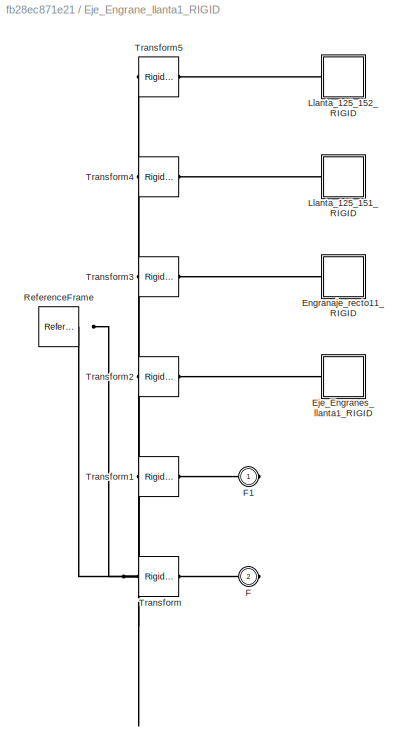
BLOCK [SubSystem] Eje_Engrane_llanta1_RIGID
  Ports = [0, 0, 0, 0, 0, 0, 2]
  RequestExecContextInheritance = off
BLOCK [SubSystem] Eje_Engrane_llanta1_RIGID/Eje_Engranes_llanta1_RIGID
  Ports = [0, 0, 0, 0, 0, 1]
  RequestExecContextInheritance = off
BLOCK [PMIOPort] Eje_Engrane_llanta1_RIGID/Eje_Engranes_llanta1_RIGID/F
  Side = Left
BLOCK [Reference] Eje_Engrane_llanta1_RIGID/Eje_Engranes_llanta1_RIGID/ReferenceFrame  REF=sm_lib/Frames and
Transforms/Reference
Frame
  Ports = [0, 0, 0, 0, 0, 0, 1]
  SourceBlock = sm_lib/Frames and\nTransforms/Reference\nFrame
  SourceProductBaseCode = MS
  SourceType = Reference\nFrame
BLOCK [Reference] Eje_Engrane_llanta1_RIGID/Eje_Engranes_llanta1_RIGID/Solid  REF=sm_lib/Body Elements/File Solid
  Ports = [0, 0, 0, 0, 0, 0, 1]
  SourceBlock = sm_lib/Body Elements/File Solid
  SourceProductBaseCode = MS
  SourceType = File Solid
BLOCK [SubSystem] Eje_Engrane_llanta1_RIGID/Engranaje_recto11_RIGID
  Ports = [0, 0, 0, 0, 0, 1]
  RequestExecContextInheritance = off
BLOCK [PMIOPort] Eje_Engrane_llanta1_RIGID/Engranaje_recto11_RIGID/F
  Side = Left
BLOCK [Reference] Eje_Engrane_llanta1_RIGID/Engranaje_recto11_RIGID/ReferenceFrame  REF=sm_lib/Frames and
Transforms/Reference
Frame
  Ports = [0, 0, 0, 0, 0, 0, 1]
  SourceBlock = sm_lib/Frames and\nTransforms/Reference\nFrame
  SourceProductBaseCode = MS
  SourceType = Reference\nFrame
BLOCK [Reference] Eje_Engrane_llanta1_RIGID/Engranaje_recto11_RIGID/Solid  REF=sm_lib/Body Elements/File Solid
  Ports = [0, 0, 0, 0, 0, 0, 1]
  SourceBlock = sm_lib/Body Elements/File Solid
  SourceProductBaseCode = MS
  SourceType = File Solid
BLOCK [PMIOPort] Eje_Engrane_llanta1_RIGID/F
  Port = 2
  Side = Right
BLOCK [PMIOPort] Eje_Engrane_llanta1_RIGID/F1
  Side = Right
BLOCK [SubSystem] Eje_Engrane_llanta1_RIGID/Llanta_125_151_RIGID
  Ports = [0, 0, 0, 0, 0, 1]
  RequestExecContextInheritance = off
BLOCK [PMIOPort] Eje_Engrane_llanta1_RIGID/Llanta_125_151_RIGID/F
  Side = Left
BLOCK [Reference] Eje_Engrane_llanta1_RIGID/Llanta_125_151_RIGID/ReferenceFrame  REF=sm_lib/Frames and
Transforms/Reference
Frame
  Ports = [0, 0, 0, 0, 0, 0, 1]
  SourceBlock = sm_lib/Frames and\nTransforms/Reference\nFrame
  SourceProductBaseCode = MS
  SourceType = Reference\nFrame
BLOCK [Reference] Eje_Engrane_llanta1_RIGID/Llanta_125_151_RIGID/Solid  REF=sm_lib/Body Elements/File Solid
  Ports = [0, 0, 0, 0, 0, 0, 1]
  SourceBlock = sm_lib/Body Elements/File Solid
  SourceProductBaseCode = MS
  SourceType = File Solid
BLOCK [SubSystem] Eje_Engrane_llanta1_RIGID/Llanta_125_152_RIGID
  Ports = [0, 0, 0, 0, 0, 1]
  RequestExecContextInheritance = off
BLOCK [PMIOPort] Eje_Engrane_llanta1_RIGID/Llanta_125_152_RIGID/F
  Side = Left
BLOCK [Reference] Eje_Engrane_llanta1_RIGID/Llanta_125_152_RIGID/ReferenceFrame  REF=sm_lib/Frames and
Transforms/Reference
Frame
  Ports = [0, 0, 0, 0, 0, 0, 1]
  SourceBlock = sm_lib/Frames and\nTransforms/Reference\nFrame
  SourceProductBaseCode = MS
  SourceType = Reference\nFrame
BLOCK [Reference] Eje_Engrane_llanta1_RIGID/Llanta_125_152_RIGID/Solid  REF=sm_lib/Body Elements/File Solid
  Ports = [0, 0, 0, 0, 0, 0, 1]
  SourceBlock = sm_lib/Body Elements/File Solid
  SourceProductBaseCode = MS
  SourceType = File Solid
BLOCK [Reference] Eje_Engrane_llanta1_RIGID/ReferenceFrame  REF=sm_lib/Frames and
Transforms/Reference
Frame
  Ports = [0, 0, 0, 0, 0, 0, 1]
  SourceBlock = sm_lib/Frames and\nTransforms/Reference\nFrame
  SourceProductBaseCode = MS
  SourceType = Reference\nFrame
BLOCK [Reference] Eje_Engrane_llanta1_RIGID/Transform  REF=sm_lib/Frames and
Transforms/Rigid
Transform
  Ports = [0, 0, 0, 0, 0, 1, 1]
  SourceBlock = sm_lib/Frames and\nTransforms/Rigid\nTransform
  SourceProductBaseCode = MS
  SourceType = Rigid\nTransform
BLOCK [Reference] Eje_Engrane_llanta1_RIGID/Transform1  REF=sm_lib/Frames and
Transforms/Rigid
Transform
  Ports = [0, 0, 0, 0, 0, 1, 1]
  SourceBlock = sm_lib/Frames and\nTransforms/Rigid\nTransform
  SourceProductBaseCode = MS
  SourceType = Rigid\nTransform
BLOCK [Reference] Eje_Engrane_llanta1_RIGID/Transform2  REF=sm_lib/Frames and
Transforms/Rigid
Transform
  Ports = [0, 0, 0, 0, 0, 1, 1]
  SourceBlock = sm_lib/Frames and\nTransforms/Rigid\nTransform
  SourceProductBaseCode = MS
  SourceType = Rigid\nTransform
BLOCK [Reference] Eje_Engrane_llanta1_RIGID/Transform3  REF=sm_lib/Frames and
Transforms/Rigid
Transform
  Ports = [0, 0, 0, 0, 0, 1, 1]
  SourceBlock = sm_lib/Frames and\nTransforms/Rigid\nTransform
  SourceProductBaseCode = MS
  SourceType = Rigid\nTransform
BLOCK [Reference] Eje_Engrane_llanta1_RIGID/Transform4  REF=sm_lib/Frames and
Transforms/Rigid
Transform
  Ports = [0, 0, 0, 0, 0, 1, 1]
  SourceBlock = sm_lib/Frames and\nTransforms/Rigid\nTransform
  SourceProductBaseCode = MS
  SourceType = Rigid\nTransform
BLOCK [Reference] Eje_Engrane_llanta1_RIGID/Transform5  REF=sm_lib/Frames and
Transforms/Rigid
Transform
  Ports = [0, 0, 0, 0, 0, 1, 1]
  SourceBlock = sm_lib/Frames and\nTransforms/Rigid\nTransform
  SourceProductBaseCode = MS
  SourceType = Rigid\nTransform
BLOCK [SubSystem] Eje_Engrane_llanta2_RIGID
  Ports = [0, 0, 0, 0, 0, 0, 2]
  RequestExecContextInheritance = off
BLOCK [SubSystem] Eje_Engrane_llanta2_RIGID/Eje_Engranes_llanta1_RIGID
  Ports = [0, 0, 0, 0, 0, 1]
  RequestExecContextInheritance = off
BLOCK [PMIOPort] Eje_Engrane_llanta2_RIGID/Eje_Engranes_llanta1_RIGID/F
  Side = Left
BLOCK [Reference] Eje_Engrane_llanta2_RIGID/Eje_Engranes_llanta1_RIGID/ReferenceFrame  REF=sm_lib/Frames and
Transforms/Reference
Frame
  Ports = [0, 0, 0, 0, 0, 0, 1]
  SourceBlock = sm_lib/Frames and\nTransforms/Reference\nFrame
  SourceProductBaseCode = MS
  SourceType = Reference\nFrame
BLOCK [Reference] Eje_Engrane_llanta2_RIGID/Eje_Engranes_llanta1_RIGID/Solid  REF=sm_lib/Body Elements/File Solid
  Ports = [0, 0, 0, 0, 0, 0, 1]
  SourceBlock = sm_lib/Body Elements/File Solid
  SourceProductBaseCode = MS
  SourceType = File Solid
BLOCK [SubSystem] Eje_Engrane_llanta2_RIGID/Engranaje_recto11_RIGID
  Ports = [0, 0, 0, 0, 0, 1]
  RequestExecContextInheritance = off
BLOCK [PMIOPort] Eje_Engrane_llanta2_RIGID/Engranaje_recto11_RIGID/F
  Side = Left
BLOCK [Reference] Eje_Engrane_llanta2_RIGID/Engranaje_recto11_RIGID/ReferenceFrame  REF=sm_lib/Frames and
Transforms/Reference
Frame
  Ports = [0, 0, 0, 0, 0, 0, 1]
  SourceBlock = sm_lib/Frames and\nTransforms/Reference\nFrame
  SourceProductBaseCode = MS
  SourceType = Reference\nFrame
BLOCK [Reference] Eje_Engrane_llanta2_RIGID/Engranaje_recto11_RIGID/Solid  REF=sm_lib/Body Elements/File Solid
  Ports = [0, 0, 0, 0, 0, 0, 1]
  SourceBlock = sm_lib/Body Elements/File Solid
  SourceProductBaseCode = MS
  SourceType = File Solid
BLOCK [PMIOPort] Eje_Engrane_llanta2_RIGID/F
  Side = Right
BLOCK [PMIOPort] Eje_Engrane_llanta2_RIGID/F1
  Port = 2
  Side = Right
BLOCK [SubSystem] Eje_Engrane_llanta2_RIGID/Llanta_125_151_RIGID
  Ports = [0, 0, 0, 0, 0, 1]
  RequestExecContextInheritance = off
BLOCK [PMIOPort] Eje_Engrane_llanta2_RIGID/Llanta_125_151_RIGID/F
  Side = Left
BLOCK [Reference] Eje_Engrane_llanta2_RIGID/Llanta_125_151_RIGID/ReferenceFrame  REF=sm_lib/Frames and
Transforms/Reference
Frame
  Ports = [0, 0, 0, 0, 0, 0, 1]
  SourceBlock = sm_lib/Frames and\nTransforms/Reference\nFrame
  SourceProductBaseCode = MS
  SourceType = Reference\nFrame
BLOCK [Reference] Eje_Engrane_llanta2_RIGID/Llanta_125_151_RIGID/Solid  REF=sm_lib/Body Elements/File Solid
  Ports = [0, 0, 0, 0, 0, 0, 1]
  SourceBlock = sm_lib/Body Elements/File Solid
  SourceProductBaseCode = MS
  SourceType = File Solid
BLOCK [SubSystem] Eje_Engrane_llanta2_RIGID/Llanta_125_152_RIGID
  Ports = [0, 0, 0, 0, 0, 1]
  RequestExecContextInheritance = off
BLOCK [PMIOPort] Eje_Engrane_llanta2_RIGID/Llanta_125_152_RIGID/F
  Side = Left
BLOCK [Reference] Eje_Engrane_llanta2_RIGID/Llanta_125_152_RIGID/ReferenceFrame  REF=sm_lib/Frames and
Transforms/Reference
Frame
  Ports = [0, 0, 0, 0, 0, 0, 1]
  SourceBlock = sm_lib/Frames and\nTransforms/Reference\nFrame
  SourceProductBaseCode = MS
  SourceType = Reference\nFrame
BLOCK [Reference] Eje_Engrane_llanta2_RIGID/Llanta_125_152_RIGID/Solid  REF=sm_lib/Body Elements/File Solid
  Ports = [0, 0, 0, 0, 0, 0, 1]
  SourceBlock = sm_lib/Body Elements/File Solid
  SourceProductBaseCode = MS
  SourceType = File Solid
BLOCK [Reference] Eje_Engrane_llanta2_RIGID/ReferenceFrame  REF=sm_lib/Frames and
Transforms/Reference
Frame
  Ports = [0, 0, 0, 0, 0, 0, 1]
  SourceBlock = sm_lib/Frames and\nTransforms/Reference\nFrame
  SourceProductBaseCode = MS
  SourceType = Reference\nFrame
BLOCK [Reference] Eje_Engrane_llanta2_RIGID/Transform  REF=sm_lib/Frames and
Transforms/Rigid
Transform
  Ports = [0, 0, 0, 0, 0, 1, 1]
  SourceBlock = sm_lib/Frames and\nTransforms/Rigid\nTransform
  SourceProductBaseCode = MS
  SourceType = Rigid\nTransform
BLOCK [Reference] Eje_Engrane_llanta2_RIGID/Transform1  REF=sm_lib/Frames and
Transforms/Rigid
Transform
  Ports = [0, 0, 0, 0, 0, 1, 1]
  SourceBlock = sm_lib/Frames and\nTransforms/Rigid\nTransform
  SourceProductBaseCode = MS
  SourceType = Rigid\nTransform
BLOCK [Reference] Eje_Engrane_llanta2_RIGID/Transform2  REF=sm_lib/Frames and
Transforms/Rigid
Transform
  Ports = [0, 0, 0, 0, 0, 1, 1]
  SourceBlock = sm_lib/Frames and\nTransforms/Rigid\nTransform
  SourceProductBaseCode = MS
  SourceType = Rigid\nTransform
BLOCK [Reference] Eje_Engrane_llanta2_RIGID/Transform3  REF=sm_lib/Frames and
Transforms/Rigid
Transform
  Ports = [0, 0, 0, 0, 0, 1, 1]
  SourceBlock = sm_lib/Frames and\nTransforms/Rigid\nTransform
  SourceProductBaseCode = MS
  SourceType = Rigid\nTransform
BLOCK [Reference] Eje_Engrane_llanta2_RIGID/Transform4  REF=sm_lib/Frames and
Transforms/Rigid
Transform
  Ports = [0, 0, 0, 0, 0, 1, 1]
  SourceBlock = sm_lib/Frames and\nTransforms/Rigid\nTransform
  SourceProductBaseCode = MS
  SourceType = Rigid\nTransform
BLOCK [Reference] Eje_Engrane_llanta2_RIGID/Transform5  REF=sm_lib/Frames and
Transforms/Rigid
Transform
  Ports = [0, 0, 0, 0, 0, 1, 1]
  SourceBlock = sm_lib/Frames and\nTransforms/Rigid\nTransform
  SourceProductBaseCode = MS
  SourceType = Rigid\nTransform
BLOCK [SubSystem] Eje_engrane1_RIGID
  Ports = [0, 0, 0, 0, 0, 1, 1]
  RequestExecContextInheritance = off
BLOCK [SubSystem] Eje_engrane1_RIGID/Eje_engrane1_RIGID
  Ports = [0, 0, 0, 0, 0, 1]
  RequestExecContextInheritance = off
BLOCK [PMIOPort] Eje_engrane1_RIGID/Eje_engrane1_RIGID/F
  Side = Left
BLOCK [Reference] Eje_engrane1_RIGID/Eje_engrane1_RIGID/ReferenceFrame  REF=sm_lib/Frames and
Transforms/Reference
Frame
  Ports = [0, 0, 0, 0, 0, 0, 1]
  SourceBlock = sm_lib/Frames and\nTransforms/Reference\nFrame
  SourceProductBaseCode = MS
  SourceType = Reference\nFrame
BLOCK [Reference] Eje_engrane1_RIGID/Eje_engrane1_RIGID/Solid  REF=sm_lib/Body Elements/File Solid
  Ports = [0, 0, 0, 0, 0, 0, 1]
  SourceBlock = sm_lib/Body Elements/File Solid
  SourceProductBaseCode = MS
  SourceType = File Solid
BLOCK [SubSystem] Eje_engrane1_RIGID/Engranaje_recto21_RIGID
  Ports = [0, 0, 0, 0, 0, 1]
  RequestExecContextInheritance = off
BLOCK [PMIOPort] Eje_engrane1_RIGID/Engranaje_recto21_RIGID/F
  Side = Left
BLOCK [Reference] Eje_engrane1_RIGID/Engranaje_recto21_RIGID/ReferenceFrame  REF=sm_lib/Frames and
Transforms/Reference
Frame
  Ports = [0, 0, 0, 0, 0, 0, 1]
  SourceBlock = sm_lib/Frames and\nTransforms/Reference\nFrame
  SourceProductBaseCode = MS
  SourceType = Reference\nFrame
BLOCK [Reference] Eje_engrane1_RIGID/Engranaje_recto21_RIGID/Solid  REF=sm_lib/Body Elements/File Solid
  Ports = [0, 0, 0, 0, 0, 0, 1]
  SourceBlock = sm_lib/Body Elements/File Solid
  SourceProductBaseCode = MS
  SourceType = File Solid
BLOCK [PMIOPort] Eje_engrane1_RIGID/F
  Port = 2
  Side = Right
BLOCK [PMIOPort] Eje_engrane1_RIGID/F1
  Side = Left
BLOCK [Reference] Eje_engrane1_RIGID/ReferenceFrame  REF=sm_lib/Frames and
Transforms/Reference
Frame
  Ports = [0, 0, 0, 0, 0, 0, 1]
  SourceBlock = sm_lib/Frames and\nTransforms/Reference\nFrame
  SourceProductBaseCode = MS
  SourceType = Reference\nFrame
BLOCK [Reference] Eje_engrane1_RIGID/Transform  REF=sm_lib/Frames and
Transforms/Rigid
Transform
  Ports = [0, 0, 0, 0, 0, 1, 1]
  SourceBlock = sm_lib/Frames and\nTransforms/Rigid\nTransform
  SourceProductBaseCode = MS
  SourceType = Rigid\nTransform
BLOCK [Reference] Eje_engrane1_RIGID/Transform1  REF=sm_lib/Frames and
Transforms/Rigid
Transform
  Ports = [0, 0, 0, 0, 0, 1, 1]
  SourceBlock = sm_lib/Frames and\nTransforms/Rigid\nTransform
  SourceProductBaseCode = MS
  SourceType = Rigid\nTransform
BLOCK [Reference] Eje_engrane1_RIGID/Transform2  REF=sm_lib/Frames and
Transforms/Rigid
Transform
  Ports = [0, 0, 0, 0, 0, 1, 1]
  SourceBlock = sm_lib/Frames and\nTransforms/Rigid\nTransform
  SourceProductBaseCode = MS
  SourceType = Rigid\nTransform
BLOCK [Reference] Eje_engrane1_RIGID/Transform3  REF=sm_lib/Frames and
Transforms/Rigid
Transform
  Ports = [0, 0, 0, 0, 0, 1, 1]
  SourceBlock = sm_lib/Frames and\nTransforms/Rigid\nTransform
  SourceProductBaseCode = MS
  SourceType = Rigid\nTransform
BLOCK [SubSystem] Eje_engrane2_RIGID
  Ports = [0, 0, 0, 0, 0, 1, 1]
  RequestExecContextInheritance = off
BLOCK [SubSystem] Eje_engrane2_RIGID/Eje_engrane1_RIGID
  Ports = [0, 0, 0, 0, 0, 1]
  RequestExecContextInheritance = off
BLOCK [PMIOPort] Eje_engrane2_RIGID/Eje_engrane1_RIGID/F
  Side = Left
BLOCK [Reference] Eje_engrane2_RIGID/Eje_engrane1_RIGID/ReferenceFrame  REF=sm_lib/Frames and
Transforms/Reference
Frame
  Ports = [0, 0, 0, 0, 0, 0, 1]
  SourceBlock = sm_lib/Frames and\nTransforms/Reference\nFrame
  SourceProductBaseCode = MS
  SourceType = Reference\nFrame
BLOCK [Reference] Eje_engrane2_RIGID/Eje_engrane1_RIGID/Solid  REF=sm_lib/Body Elements/File Solid
  Ports = [0, 0, 0, 0, 0, 0, 1]
  SourceBlock = sm_lib/Body Elements/File Solid
  SourceProductBaseCode = MS
  SourceType = File Solid
BLOCK [SubSystem] Eje_engrane2_RIGID/Engranaje_recto21_RIGID
  Ports = [0, 0, 0, 0, 0, 1]
  RequestExecContextInheritance = off
BLOCK [PMIOPort] Eje_engrane2_RIGID/Engranaje_recto21_RIGID/F
  Side = Left
BLOCK [Reference] Eje_engrane2_RIGID/Engranaje_recto21_RIGID/ReferenceFrame  REF=sm_lib/Frames and
Transforms/Reference
Frame
  Ports = [0, 0, 0, 0, 0, 0, 1]
  SourceBlock = sm_lib/Frames and\nTransforms/Reference\nFrame
  SourceProductBaseCode = MS
  SourceType = Reference\nFrame
BLOCK [Reference] Eje_engrane2_RIGID/Engranaje_recto21_RIGID/Solid  REF=sm_lib/Body Elements/File Solid
  Ports = [0, 0, 0, 0, 0, 0, 1]
  SourceBlock = sm_lib/Body Elements/File Solid
  SourceProductBaseCode = MS
  SourceType = File Solid
BLOCK [PMIOPort] Eje_engrane2_RIGID/F
  Port = 2
  Side = Right
BLOCK [PMIOPort] Eje_engrane2_RIGID/F1
  Side = Left
BLOCK [Reference] Eje_engrane2_RIGID/ReferenceFrame  REF=sm_lib/Frames and
Transforms/Reference
Frame
  Ports = [0, 0, 0, 0, 0, 0, 1]
  SourceBlock = sm_lib/Frames and\nTransforms/Reference\nFrame
  SourceProductBaseCode = MS
  SourceType = Reference\nFrame
BLOCK [Reference] Eje_engrane2_RIGID/Transform  REF=sm_lib/Frames and
Transforms/Rigid
Transform
  Ports = [0, 0, 0, 0, 0, 1, 1]
  SourceBlock = sm_lib/Frames and\nTransforms/Rigid\nTransform
  SourceProductBaseCode = MS
  SourceType = Rigid\nTransform
BLOCK [Reference] Eje_engrane2_RIGID/Transform1  REF=sm_lib/Frames and
Transforms/Rigid
Transform
  Ports = [0, 0, 0, 0, 0, 1, 1]
  SourceBlock = sm_lib/Frames and\nTransforms/Rigid\nTransform
  SourceProductBaseCode = MS
  SourceType = Rigid\nTransform
BLOCK [Reference] Eje_engrane2_RIGID/Transform2  REF=sm_lib/Frames and
Transforms/Rigid
Transform
  Ports = [0, 0, 0, 0, 0, 1, 1]
  SourceBlock = sm_lib/Frames and\nTransforms/Rigid\nTransform
  SourceProductBaseCode = MS
  SourceType = Rigid\nTransform
BLOCK [Reference] Eje_engrane2_RIGID/Transform3  REF=sm_lib/Frames and
Transforms/Rigid
Transform
  Ports = [0, 0, 0, 0, 0, 1, 1]
  SourceBlock = sm_lib/Frames and\nTransforms/Rigid\nTransform
  SourceProductBaseCode = MS
  SourceType = Rigid\nTransform
BLOCK [SubSystem] Eje_engrane_chico1_RIGID
  Ports = [0, 0, 0, 0, 0, 0, 1]
  RequestExecContextInheritance = off
BLOCK [SubSystem] Eje_engrane_chico1_RIGID/Eje_engrane1_RIGID
  Ports = [0, 0, 0, 0, 0, 1]
  RequestExecContextInheritance = off
BLOCK [PMIOPort] Eje_engrane_chico1_RIGID/Eje_engrane1_RIGID/F
  Side = Left
BLOCK [Reference] Eje_engrane_chico1_RIGID/Eje_engrane1_RIGID/ReferenceFrame  REF=sm_lib/Frames and
Transforms/Reference
Frame
  Ports = [0, 0, 0, 0, 0, 0, 1]
  SourceBlock = sm_lib/Frames and\nTransforms/Reference\nFrame
  SourceProductBaseCode = MS
  SourceType = Reference\nFrame
BLOCK [Reference] Eje_engrane_chico1_RIGID/Eje_engrane1_RIGID/Solid  REF=sm_lib/Body Elements/File Solid
  Ports = [0, 0, 0, 0, 0, 0, 1]
  SourceBlock = sm_lib/Body Elements/File Solid
  SourceProductBaseCode = MS
  SourceType = File Solid
BLOCK [SubSystem] Eje_engrane_chico1_RIGID/Engranaje_recto11_RIGID
  Ports = [0, 0, 0, 0, 0, 1]
  RequestExecContextInheritance = off
BLOCK [PMIOPort] Eje_engrane_chico1_RIGID/Engranaje_recto11_RIGID/F
  Side = Left
BLOCK [Reference] Eje_engrane_chico1_RIGID/Engranaje_recto11_RIGID/ReferenceFrame  REF=sm_lib/Frames and
Transforms/Reference
Frame
  Ports = [0, 0, 0, 0, 0, 0, 1]
  SourceBlock = sm_lib/Frames and\nTransforms/Reference\nFrame
  SourceProductBaseCode = MS
  SourceType = Reference\nFrame
BLOCK [Reference] Eje_engrane_chico1_RIGID/Engranaje_recto11_RIGID/Solid  REF=sm_lib/Body Elements/File Solid
  Ports = [0, 0, 0, 0, 0, 0, 1]
  SourceBlock = sm_lib/Body Elements/File Solid
  SourceProductBaseCode = MS
  SourceType = File Solid
BLOCK [PMIOPort] Eje_engrane_chico1_RIGID/F
  Side = Right
BLOCK [Reference] Eje_engrane_chico1_RIGID/ReferenceFrame  REF=sm_lib/Frames and
Transforms/Reference
Frame
  Ports = [0, 0, 0, 0, 0, 0, 1]
  SourceBlock = sm_lib/Frames and\nTransforms/Reference\nFrame
  SourceProductBaseCode = MS
  SourceType = Reference\nFrame
BLOCK [Reference] Eje_engrane_chico1_RIGID/Transform  REF=sm_lib/Frames and
Transforms/Rigid
Transform
  Ports = [0, 0, 0, 0, 0, 1, 1]
  SourceBlock = sm_lib/Frames and\nTransforms/Rigid\nTransform
  SourceProductBaseCode = MS
  SourceType = Rigid\nTransform
BLOCK [Reference] Eje_engrane_chico1_RIGID/Transform1  REF=sm_lib/Frames and
Transforms/Rigid
Transform
  Ports = [0, 0, 0, 0, 0, 1, 1]
  SourceBlock = sm_lib/Frames and\nTransforms/Rigid\nTransform
  SourceProductBaseCode = MS
  SourceType = Rigid\nTransform
BLOCK [Reference] Eje_engrane_chico1_RIGID/Transform2  REF=sm_lib/Frames and
Transforms/Rigid
Transform
  Ports = [0, 0, 0, 0, 0, 1, 1]
  SourceBlock = sm_lib/Frames and\nTransforms/Rigid\nTransform
  SourceProductBaseCode = MS
  SourceType = Rigid\nTransform
BLOCK [Reference] MechanismConfiguration  REF=sm_lib/Utilities/Mechanism
Configuration
  Ports = [0, 0, 0, 0, 0, 0, 1]
  SourceBlock = sm_lib/Utilities/Mechanism\nConfiguration
  SourceProductBaseCode = MS
  SourceType = Mechanism\nConfiguration
BLOCK [Reference] Planar  REF=sm_lib/Joints/Planar Joint
  Ports = [0, 0, 0, 0, 0, 1, 1]
  SourceBlock = sm_lib/Joints/Planar Joint
  SourceProductBaseCode = MS
  SourceType = Planar Joint
BLOCK [Reference] Planar1  REF=sm_lib/Joints/Planar Joint
  Ports = [0, 0, 0, 0, 0, 1, 1]
  SourceBlock = sm_lib/Joints/Planar Joint
  SourceProductBaseCode = MS
  SourceType = Planar Joint
BLOCK [Reference] Prismatic  REF=sm_lib/Joints/Prismatic
Joint
  Ports = [0, 0, 0, 0, 0, 1, 1]
  SourceBlock = sm_lib/Joints/Prismatic\nJoint
  SourceProductBaseCode = MS
  SourceType = Prismatic\nJoint
BLOCK [Reference] Revolute  REF=sm_lib/Joints/Revolute Joint
  Ports = [0, 0, 0, 0, 0, 2, 1]
  SourceBlock = sm_lib/Joints/Revolute Joint
  SourceProductBaseCode = MS
  SourceType = Revolute Joint
BLOCK [Reference] Revolute1  REF=sm_lib/Joints/Revolute Joint
  Ports = [0, 0, 0, 0, 0, 2, 1]
  SourceBlock = sm_lib/Joints/Revolute Joint
  SourceProductBaseCode = MS
  SourceType = Revolute Joint
BLOCK [Reference] Revolute2  REF=sm_lib/Joints/Revolute Joint
  Ports = [0, 0, 0, 0, 0, 1, 1]
  SourceBlock = sm_lib/Joints/Revolute Joint
  SourceProductBaseCode = MS
  SourceType = Revolute Joint
BLOCK [Reference] Simulink-PS Converter  REF=nesl_utility/Simulink-PS
Converter
  Ports = [1, 0, 0, 0, 0, 0, 1]
  SourceBlock = nesl_utility/Simulink-PS\nConverter
  SourceProductBaseCode = SS
  SourceType = Simulink-PS\nConverter
BLOCK [Reference] Solver Configuration  REF=nesl_utility/Solver
Configuration
  Ports = [0, 0, 0, 0, 0, 0, 1]
  SourceBlock = nesl_utility/Solver\nConfiguration
  SourceProductBaseCode = SS
  SourceType = Solver\nConfiguration
BLOCK [Reference] Transform  REF=sm_lib/Frames and
Transforms/Rigid
Transform
  Ports = [0, 0, 0, 0, 0, 1, 1]
  SourceBlock = sm_lib/Frames and\nTransforms/Rigid\nTransform
  SourceProductBaseCode = MS
  SourceType = Rigid\nTransform
BLOCK [Reference] World  REF=sm_lib/Frames and
Transforms/World Frame
  Ports = [0, 0, 0, 0, 0, 0, 1]
  SourceBlock = sm_lib/Frames and\nTransforms/World Frame
  SourceProductBaseCode = MS
  SourceType = World Frame
LINE Constant:1 -> Simulink-PS Converter:1
PLINE Base_carga1_RIGID/F:RConn1 -- Base_carga1_RIGID/Transform:RConn1
PNET net1: Base_carga1_RIGID/ReferenceFrame:RConn1 -- Base_carga1_RIGID/Solid:RConn1 -- Base_carga1_RIGID/Transform:LConn1
PLINE Base_carga1_RIGID:RConn1 -- Prismatic:LConn1
PNET net2: Base_soporte1_RIGID/BaseCarro1_RIGID/F:RConn1 -- Base_soporte1_RIGID/BaseCarro1_RIGID/ReferenceFrame:RConn1 -- Base_soporte1_RIGID/BaseCarro1_RIGID/Solid:RConn1
PLINE Base_soporte1_RIGID/BaseCarro1_RIGID:LConn1 -- Base_soporte1_RIGID/Transform7:RConn1
PLINE Base_soporte1_RIGID/F1:RConn1 -- Base_soporte1_RIGID/Transform1:RConn1
PLINE Base_soporte1_RIGID/F2:RConn1 -- Base_soporte1_RIGID/Transform2:RConn1
PLINE Base_soporte1_RIGID/F3:RConn1 -- Base_soporte1_RIGID/Transform3:RConn1
PLINE Base_soporte1_RIGID/F4:RConn1 -- Base_soporte1_RIGID/Transform4:RConn1
PLINE Base_soporte1_RIGID/F5:RConn1 -- Base_soporte1_RIGID/Transform5:RConn1
PLINE Base_soporte1_RIGID/F6:RConn1 -- Base_soporte1_RIGID/Transform6:RConn1
PLINE Base_soporte1_RIGID/F:RConn1 -- Base_soporte1_RIGID/Transform:RConn1
PNET net3: Base_soporte1_RIGID/ReferenceFrame:RConn1 -- Base_soporte1_RIGID/Transform10:LConn1 -- Base_soporte1_RIGID/Transform11:LConn1 -- Base_soporte1_RIGID/Transform12:LConn1 -- Base_soporte1_RIGID/Transform13:LConn1 -- Base_soporte1_RIGID/Transform14:LConn1 -- Base_soporte1_RIGID/Transform15:LConn1 -- Base_soporte1_RIGID/Transform16:LConn1 -- Base_soporte1_RIGID/Transform17:LConn1 -- Base_soporte1_RIGID/Transform18:LConn1 -- Base_soporte1_RIGID/Transform19:LConn1 -- Base_soporte1_RIGID/Transform1:LConn1 -- Base_soporte1_RIGID/Transform20:LConn1 -- Base_soporte1_RIGID/Transform21:LConn1 -- Base_soporte1_RIGID/Transform22:LConn1 -- Base_soporte1_RIGID/Transform23:LConn1 -- Base_soporte1_RIGID/Transform24:LConn1 -- Base_soporte1_RIGID/Transform25:LConn1 -- Base_soporte1_RIGID/Transform26:LConn1 -- Base_soporte1_RIGID/Transform27:LConn1 -- Base_soporte1_RIGID/Transform28:LConn1 -- Base_soporte1_RIGID/Transform29:LConn1 -- Base_soporte1_RIGID/Transform2:LConn1 -- Base_soporte1_RIGID/Transform30:LConn1 -- Base_soporte1_RIGID/Transform31:LConn1 -- Base_soporte1_RIGID/Transform32:LConn1 -- Base_soporte1_RIGID/Transform33:LConn1 -- Base_soporte1_RIGID/Transform34:LConn1 -- Base_soporte1_RIGID/Transform35:LConn1 -- Base_soporte1_RIGID/Transform36:LConn1 -- Base_soporte1_RIGID/Transform37:LConn1 -- Base_soporte1_RIGID/Transform38:LConn1 -- Base_soporte1_RIGID/Transform39:LConn1 -- Base_soporte1_RIGID/Transform3:LConn1 -- Base_soporte1_RIGID/Transform40:LConn1 -- Base_soporte1_RIGID/Transform41:LConn1 -- Base_soporte1_RIGID/Transform42:LConn1 -- Base_soporte1_RIGID/Transform43:LConn1 -- Base_soporte1_RIGID/Transform44:LConn1 -- Base_soporte1_RIGID/Transform45:LConn1 -- Base_soporte1_RIGID/Transform46:LConn1 -- Base_soporte1_RIGID/Transform47:LConn1 -- Base_soporte1_RIGID/Transform48:LConn1 -- Base_soporte1_RIGID/Transform49:LConn1 -- Base_soporte1_RIGID/Transform4:LConn1 -- Base_soporte1_RIGID/Transform5:LConn1 -- Base_soporte1_RIGID/Transform6:LConn1 -- Base_soporte1_RIGID/Transform7:LConn1 -- Base_soporte1_RIGID/Transform8:LConn1 -- Base_soporte1_RIGID/Transform9:LConn1 -- Base_soporte1_RIGID/Transform:LConn1
PLINE Base_soporte1_RIGID/Transform10:RConn1 -- Base_soporte1_RIGID/sopoetellantas3_RIGID:LConn1
PLINE Base_soporte1_RIGID/Transform11:RConn1 -- Base_soporte1_RIGID/sopoetellantas4_RIGID:LConn1
PLINE Base_soporte1_RIGID/Transform12:RConn1 -- Base_soporte1_RIGID/soporte_para_engrane3_RIGID:LConn1
PLINE Base_soporte1_RIGID/Transform13:RConn1 -- Base_soporte1_RIGID/soporte_para_engrane4_RIGID:LConn1
PLINE Base_soporte1_RIGID/Transform14:RConn1 -- Base_soporte1_RIGID/soporte_para_engrane7_RIGID:LConn1
PLINE Base_soporte1_RIGID/Transform15:RConn1 -- Base_soporte1_RIGID/soporte_para_engrane8_RIGID:LConn1
PLINE Base_soporte1_RIGID/Transform16:RConn1 -- Base_soporte1_RIGID/soporte_para_engrane9_RIGID:LConn1
PLINE Base_soporte1_RIGID/Transform17:RConn1 -- Base_soporte1_RIGID/din_912_m5x0_8_20_8_81_RIGID:LConn1
PLINE Base_soporte1_RIGID/Transform18:RConn1 -- Base_soporte1_RIGID/din_912_m5x0_8_20_8_82_RIGID:LConn1
PLINE Base_soporte1_RIGID/Transform19:RConn1 -- Base_soporte1_RIGID/din_912_m5x0_8_20_8_83_RIGID:LConn1
PLINE Base_soporte1_RIGID/Transform20:RConn1 -- Base_soporte1_RIGID/din_912_m5x0_8_20_8_84_RIGID:LConn1
PLINE Base_soporte1_RIGID/Transform21:RConn1 -- Base_soporte1_RIGID/din_912_m5x0_8_20_8_85_RIGID:LConn1
PLINE Base_soporte1_RIGID/Transform22:RConn1 -- Base_soporte1_RIGID/din_912_m5x0_8_20_8_86_RIGID:LConn1
PLINE Base_soporte1_RIGID/Transform23:RConn1 -- Base_soporte1_RIGID/din_912_m5x0_8_20_8_87_RIGID:LConn1
PLINE Base_soporte1_RIGID/Transform24:RConn1 -- Base_soporte1_RIGID/din_912_m5x0_8_20_8_88_RIGID:LConn1
PLINE Base_soporte1_RIGID/Transform25:RConn1 -- Base_soporte1_RIGID/din_912_m5x0_8_20_8_89_RIGID:LConn1
PLINE Base_soporte1_RIGID/Transform26:RConn1 -- Base_soporte1_RIGID/din_912_m5x0_8_20_8_810_RIGID:LConn1
PLINE Base_soporte1_RIGID/Transform27:RConn1 -- Base_soporte1_RIGID/din_912_m5x0_8_20_8_811_RIGID:LConn1
PLINE Base_soporte1_RIGID/Transform28:RConn1 -- Base_soporte1_RIGID/din_912_m5x0_8_20_8_812_RIGID:LConn1
PLINE Base_soporte1_RIGID/Transform29:RConn1 -- Base_soporte1_RIGID/din_912_m5x0_8_20_8_815_RIGID:LConn1
PLINE Base_soporte1_RIGID/Transform30:RConn1 -- Base_soporte1_RIGID/din_912_m5x0_8_20_8_816_RIGID:LConn1
PLINE Base_soporte1_RIGID/Transform31:RConn1 -- Base_soporte1_RIGID/din_912_m5x0_8_20_8_817_RIGID:LConn1
PLINE Base_soporte1_RIGID/Transform32:RConn1 -- Base_soporte1_RIGID/din_912_m5x0_8_20_8_818_RIGID:LConn1
PLINE Base_soporte1_RIGID/Transform33:RConn1 -- Base_soporte1_RIGID/din_912_m5x0_8_20_8_819_RIGID:LConn1
PLINE Base_soporte1_RIGID/Transform34:RConn1 -- Base_soporte1_RIGID/din_912_m5x0_8_20_8_820_RIGID:LConn1
PLINE Base_soporte1_RIGID/Transform35:RConn1 -- Base_soporte1_RIGID/din_912_m5x0_8_20_8_821_RIGID:LConn1
PLINE Base_soporte1_RIGID/Transform36:RConn1 -- Base_soporte1_RIGID/din_912_m5x0_8_20_8_822_RIGID:LConn1
PLINE Base_soporte1_RIGID/Transform37:RConn1 -- Base_soporte1_RIGID/din_912_m5x0_8_20_8_823_RIGID:LConn1
PLINE Base_soporte1_RIGID/Transform38:RConn1 -- Base_soporte1_RIGID/din_912_m5x0_8_20_8_824_RIGID:LConn1
PLINE Base_soporte1_RIGID/Transform39:RConn1 -- Base_soporte1_RIGID/din_912_m5x0_8_20_8_825_RIGID:LConn1
PLINE Base_soporte1_RIGID/Transform40:RConn1 -- Base_soporte1_RIGID/din_912_m5x0_8_20_8_826_RIGID:LConn1
PLINE Base_soporte1_RIGID/Transform41:RConn1 -- Base_soporte1_RIGID/din_912_m5x0_8_20_8_827_RIGID:LConn1
PLINE Base_soporte1_RIGID/Transform42:RConn1 -- Base_soporte1_RIGID/din_912_m5x0_8_20_8_828_RIGID:LConn1
PLINE Base_soporte1_RIGID/Transform43:RConn1 -- Base_soporte1_RIGID/din_912_m5x0_8_20_8_829_RIGID:LConn1
PLINE Base_soporte1_RIGID/Transform44:RConn1 -- Base_soporte1_RIGID/din_912_m5x0_8_20_8_830_RIGID:LConn1
PLINE Base_soporte1_RIGID/Transform45:RConn1 -- Base_soporte1_RIGID/sopoetellantas5_RIGID:LConn1
PLINE Base_soporte1_RIGID/Transform46:RConn1 -- Base_soporte1_RIGID/sopoetellantas6_RIGID:LConn1
PLINE Base_soporte1_RIGID/Transform47:RConn1 -- Base_soporte1_RIGID/sopoetellantas7_RIGID:LConn1
PLINE Base_soporte1_RIGID/Transform48:RConn1 -- Base_soporte1_RIGID/sopoetellantas8_RIGID:LConn1
PLINE Base_soporte1_RIGID/Transform49:RConn1 -- Base_soporte1_RIGID/sopoetellantas9_RIGID:LConn1
PLINE Base_soporte1_RIGID/Transform8:RConn1 -- Base_soporte1_RIGID/sopoetellantas1_RIGID:LConn1
PLINE Base_soporte1_RIGID/Transform9:RConn1 -- Base_soporte1_RIGID/sopoetellantas2_RIGID:LConn1
PNET net4: Base_soporte1_RIGID/din_912_m5x0_8_20_8_810_RIGID/F:RConn1 -- Base_soporte1_RIGID/din_912_m5x0_8_20_8_810_RIGID/ReferenceFrame:RConn1 -- Base_soporte1_RIGID/din_912_m5x0_8_20_8_810_RIGID/Solid:RConn1
PNET net5: Base_soporte1_RIGID/din_912_m5x0_8_20_8_811_RIGID/F:RConn1 -- Base_soporte1_RIGID/din_912_m5x0_8_20_8_811_RIGID/ReferenceFrame:RConn1 -- Base_soporte1_RIGID/din_912_m5x0_8_20_8_811_RIGID/Solid:RConn1
PNET net6: Base_soporte1_RIGID/din_912_m5x0_8_20_8_812_RIGID/F:RConn1 -- Base_soporte1_RIGID/din_912_m5x0_8_20_8_812_RIGID/ReferenceFrame:RConn1 -- Base_soporte1_RIGID/din_912_m5x0_8_20_8_812_RIGID/Solid:RConn1
PNET net7: Base_soporte1_RIGID/din_912_m5x0_8_20_8_815_RIGID/F:RConn1 -- Base_soporte1_RIGID/din_912_m5x0_8_20_8_815_RIGID/ReferenceFrame:RConn1 -- Base_soporte1_RIGID/din_912_m5x0_8_20_8_815_RIGID/Solid:RConn1
PNET net8: Base_soporte1_RIGID/din_912_m5x0_8_20_8_816_RIGID/F:RConn1 -- Base_soporte1_RIGID/din_912_m5x0_8_20_8_816_RIGID/ReferenceFrame:RConn1 -- Base_soporte1_RIGID/din_912_m5x0_8_20_8_816_RIGID/Solid:RConn1
PNET net9: Base_soporte1_RIGID/din_912_m5x0_8_20_8_817_RIGID/F:RConn1 -- Base_soporte1_RIGID/din_912_m5x0_8_20_8_817_RIGID/ReferenceFrame:RConn1 -- Base_soporte1_RIGID/din_912_m5x0_8_20_8_817_RIGID/Solid:RConn1
PNET net10: Base_soporte1_RIGID/din_912_m5x0_8_20_8_818_RIGID/F:RConn1 -- Base_soporte1_RIGID/din_912_m5x0_8_20_8_818_RIGID/ReferenceFrame:RConn1 -- Base_soporte1_RIGID/din_912_m5x0_8_20_8_818_RIGID/Solid:RConn1
PNET net11: Base_soporte1_RIGID/din_912_m5x0_8_20_8_819_RIGID/F:RConn1 -- Base_soporte1_RIGID/din_912_m5x0_8_20_8_819_RIGID/ReferenceFrame:RConn1 -- Base_soporte1_RIGID/din_912_m5x0_8_20_8_819_RIGID/Solid:RConn1
PNET net12: Base_soporte1_RIGID/din_912_m5x0_8_20_8_81_RIGID/F:RConn1 -- Base_soporte1_RIGID/din_912_m5x0_8_20_8_81_RIGID/ReferenceFrame:RConn1 -- Base_soporte1_RIGID/din_912_m5x0_8_20_8_81_RIGID/Solid:RConn1
PNET net13: Base_soporte1_RIGID/din_912_m5x0_8_20_8_820_RIGID/F:RConn1 -- Base_soporte1_RIGID/din_912_m5x0_8_20_8_820_RIGID/ReferenceFrame:RConn1 -- Base_soporte1_RIGID/din_912_m5x0_8_20_8_820_RIGID/Solid:RConn1
PNET net14: Base_soporte1_RIGID/din_912_m5x0_8_20_8_821_RIGID/F:RConn1 -- Base_soporte1_RIGID/din_912_m5x0_8_20_8_821_RIGID/ReferenceFrame:RConn1 -- Base_soporte1_RIGID/din_912_m5x0_8_20_8_821_RIGID/Solid:RConn1
PNET net15: Base_soporte1_RIGID/din_912_m5x0_8_20_8_822_RIGID/F:RConn1 -- Base_soporte1_RIGID/din_912_m5x0_8_20_8_822_RIGID/ReferenceFrame:RConn1 -- Base_soporte1_RIGID/din_912_m5x0_8_20_8_822_RIGID/Solid:RConn1
PNET net16: Base_soporte1_RIGID/din_912_m5x0_8_20_8_823_RIGID/F:RConn1 -- Base_soporte1_RIGID/din_912_m5x0_8_20_8_823_RIGID/ReferenceFrame:RConn1 -- Base_soporte1_RIGID/din_912_m5x0_8_20_8_823_RIGID/Solid:RConn1
PNET net17: Base_soporte1_RIGID/din_912_m5x0_8_20_8_824_RIGID/F:RConn1 -- Base_soporte1_RIGID/din_912_m5x0_8_20_8_824_RIGID/ReferenceFrame:RConn1 -- Base_soporte1_RIGID/din_912_m5x0_8_20_8_824_RIGID/Solid:RConn1
PNET net18: Base_soporte1_RIGID/din_912_m5x0_8_20_8_825_RIGID/F:RConn1 -- Base_soporte1_RIGID/din_912_m5x0_8_20_8_825_RIGID/ReferenceFrame:RConn1 -- Base_soporte1_RIGID/din_912_m5x0_8_20_8_825_RIGID/Solid:RConn1
PNET net19: Base_soporte1_RIGID/din_912_m5x0_8_20_8_826_RIGID/F:RConn1 -- Base_soporte1_RIGID/din_912_m5x0_8_20_8_826_RIGID/ReferenceFrame:RConn1 -- Base_soporte1_RIGID/din_912_m5x0_8_20_8_826_RIGID/Solid:RConn1
PNET net20: Base_soporte1_RIGID/din_912_m5x0_8_20_8_827_RIGID/F:RConn1 -- Base_soporte1_RIGID/din_912_m5x0_8_20_8_827_RIGID/ReferenceFrame:RConn1 -- Base_soporte1_RIGID/din_912_m5x0_8_20_8_827_RIGID/Solid:RConn1
PNET net21: Base_soporte1_RIGID/din_912_m5x0_8_20_8_828_RIGID/F:RConn1 -- Base_soporte1_RIGID/din_912_m5x0_8_20_8_828_RIGID/ReferenceFrame:RConn1 -- Base_soporte1_RIGID/din_912_m5x0_8_20_8_828_RIGID/Solid:RConn1
PNET net22: Base_soporte1_RIGID/din_912_m5x0_8_20_8_829_RIGID/F:RConn1 -- Base_soporte1_RIGID/din_912_m5x0_8_20_8_829_RIGID/ReferenceFrame:RConn1 -- Base_soporte1_RIGID/din_912_m5x0_8_20_8_829_RIGID/Solid:RConn1
PNET net23: Base_soporte1_RIGID/din_912_m5x0_8_20_8_82_RIGID/F:RConn1 -- Base_soporte1_RIGID/din_912_m5x0_8_20_8_82_RIGID/ReferenceFrame:RConn1 -- Base_soporte1_RIGID/din_912_m5x0_8_20_8_82_RIGID/Solid:RConn1
PNET net24: Base_soporte1_RIGID/din_912_m5x0_8_20_8_830_RIGID/F:RConn1 -- Base_soporte1_RIGID/din_912_m5x0_8_20_8_830_RIGID/ReferenceFrame:RConn1 -- Base_soporte1_RIGID/din_912_m5x0_8_20_8_830_RIGID/Solid:RConn1
PNET net25: Base_soporte1_RIGID/din_912_m5x0_8_20_8_83_RIGID/F:RConn1 -- Base_soporte1_RIGID/din_912_m5x0_8_20_8_83_RIGID/ReferenceFrame:RConn1 -- Base_soporte1_RIGID/din_912_m5x0_8_20_8_83_RIGID/Solid:RConn1
PNET net26: Base_soporte1_RIGID/din_912_m5x0_8_20_8_84_RIGID/F:RConn1 -- Base_soporte1_RIGID/din_912_m5x0_8_20_8_84_RIGID/ReferenceFrame:RConn1 -- Base_soporte1_RIGID/din_912_m5x0_8_20_8_84_RIGID/Solid:RConn1
PNET net27: Base_soporte1_RIGID/din_912_m5x0_8_20_8_85_RIGID/F:RConn1 -- Base_soporte1_RIGID/din_912_m5x0_8_20_8_85_RIGID/ReferenceFrame:RConn1 -- Base_soporte1_RIGID/din_912_m5x0_8_20_8_85_RIGID/Solid:RConn1
PNET net28: Base_soporte1_RIGID/din_912_m5x0_8_20_8_86_RIGID/F:RConn1 -- Base_soporte1_RIGID/din_912_m5x0_8_20_8_86_RIGID/ReferenceFrame:RConn1 -- Base_soporte1_RIGID/din_912_m5x0_8_20_8_86_RIGID/Solid:RConn1
PNET net29: Base_soporte1_RIGID/din_912_m5x0_8_20_8_87_RIGID/F:RConn1 -- Base_soporte1_RIGID/din_912_m5x0_8_20_8_87_RIGID/ReferenceFrame:RConn1 -- Base_soporte1_RIGID/din_912_m5x0_8_20_8_87_RIGID/Solid:RConn1
PNET net30: Base_soporte1_RIGID/din_912_m5x0_8_20_8_88_RIGID/F:RConn1 -- Base_soporte1_RIGID/din_912_m5x0_8_20_8_88_RIGID/ReferenceFrame:RConn1 -- Base_soporte1_RIGID/din_912_m5x0_8_20_8_88_RIGID/Solid:RConn1
PNET net31: Base_soporte1_RIGID/din_912_m5x0_8_20_8_89_RIGID/F:RConn1 -- Base_soporte1_RIGID/din_912_m5x0_8_20_8_89_RIGID/ReferenceFrame:RConn1 -- Base_soporte1_RIGID/din_912_m5x0_8_20_8_89_RIGID/Solid:RConn1
PNET net32: Base_soporte1_RIGID/sopoetellantas1_RIGID/F:RConn1 -- Base_soporte1_RIGID/sopoetellantas1_RIGID/ReferenceFrame:RConn1 -- Base_soporte1_RIGID/sopoetellantas1_RIGID/Solid:RConn1
PNET net33: Base_soporte1_RIGID/sopoetellantas2_RIGID/F:RConn1 -- Base_soporte1_RIGID/sopoetellantas2_RIGID/ReferenceFrame:RConn1 -- Base_soporte1_RIGID/sopoetellantas2_RIGID/Solid:RConn1
PNET net34: Base_soporte1_RIGID/sopoetellantas3_RIGID/F:RConn1 -- Base_soporte1_RIGID/sopoetellantas3_RIGID/ReferenceFrame:RConn1 -- Base_soporte1_RIGID/sopoetellantas3_RIGID/Solid:RConn1
PNET net35: Base_soporte1_RIGID/sopoetellantas4_RIGID/F:RConn1 -- Base_soporte1_RIGID/sopoetellantas4_RIGID/ReferenceFrame:RConn1 -- Base_soporte1_RIGID/sopoetellantas4_RIGID/Solid:RConn1
PNET net36: Base_soporte1_RIGID/sopoetellantas5_RIGID/F:RConn1 -- Base_soporte1_RIGID/sopoetellantas5_RIGID/ReferenceFrame:RConn1 -- Base_soporte1_RIGID/sopoetellantas5_RIGID/Solid:RConn1
PNET net37: Base_soporte1_RIGID/sopoetellantas6_RIGID/F:RConn1 -- Base_soporte1_RIGID/sopoetellantas6_RIGID/ReferenceFrame:RConn1 -- Base_soporte1_RIGID/sopoetellantas6_RIGID/Solid:RConn1
PNET net38: Base_soporte1_RIGID/sopoetellantas7_RIGID/F:RConn1 -- Base_soporte1_RIGID/sopoetellantas7_RIGID/ReferenceFrame:RConn1 -- Base_soporte1_RIGID/sopoetellantas7_RIGID/Solid:RConn1
PNET net39: Base_soporte1_RIGID/sopoetellantas8_RIGID/F:RConn1 -- Base_soporte1_RIGID/sopoetellantas8_RIGID/ReferenceFrame:RConn1 -- Base_soporte1_RIGID/sopoetellantas8_RIGID/Solid:RConn1
PNET net40: Base_soporte1_RIGID/sopoetellantas9_RIGID/F:RConn1 -- Base_soporte1_RIGID/sopoetellantas9_RIGID/ReferenceFrame:RConn1 -- Base_soporte1_RIGID/sopoetellantas9_RIGID/Solid:RConn1
PNET net41: Base_soporte1_RIGID/soporte_para_engrane3_RIGID/F:RConn1 -- Base_soporte1_RIGID/soporte_para_engrane3_RIGID/ReferenceFrame:RConn1 -- Base_soporte1_RIGID/soporte_para_engrane3_RIGID/Solid:RConn1
PNET net42: Base_soporte1_RIGID/soporte_para_engrane4_RIGID/F:RConn1 -- Base_soporte1_RIGID/soporte_para_engrane4_RIGID/ReferenceFrame:RConn1 -- Base_soporte1_RIGID/soporte_para_engrane4_RIGID/Solid:RConn1
PNET net43: Base_soporte1_RIGID/soporte_para_engrane7_RIGID/F:RConn1 -- Base_soporte1_RIGID/soporte_para_engrane7_RIGID/ReferenceFrame:RConn1 -- Base_soporte1_RIGID/soporte_para_engrane7_RIGID/Solid:RConn1
PNET net44: Base_soporte1_RIGID/soporte_para_engrane8_RIGID/F:RConn1 -- Base_soporte1_RIGID/soporte_para_engrane8_RIGID/ReferenceFrame:RConn1 -- Base_soporte1_RIGID/soporte_para_engrane8_RIGID/Solid:RConn1
PNET net45: Base_soporte1_RIGID/soporte_para_engrane9_RIGID/F:RConn1 -- Base_soporte1_RIGID/soporte_para_engrane9_RIGID/ReferenceFrame:RConn1 -- Base_soporte1_RIGID/soporte_para_engrane9_RIGID/Solid:RConn1
PLINE Base_soporte1_RIGID:LConn1 -- Revolute2:RConn1
PLINE Base_soporte1_RIGID:LConn2 -- Transform:RConn1
PLINE Base_soporte1_RIGID:LConn3 -- Cylindrical1:RConn1
PLINE Base_soporte1_RIGID:LConn4 -- Revolute1:RConn1
PLINE Base_soporte1_RIGID:LConn5 -- Revolute:RConn1
PLINE Base_soporte1_RIGID:LConn6 -- Prismatic:RConn1
PLINE Base_soporte1_RIGID:LConn7 -- Cylindrical:RConn1
PLINE Cylindrical1:LConn1 -- Eje_Engrane_llanta2_RIGID:RConn1
PLINE Cylindrical:LConn1 -- Eje_Engrane_llanta1_RIGID:RConn2
PNET net46: Eje_Engrane_llanta1_RIGID/Eje_Engranes_llanta1_RIGID/F:RConn1 -- Eje_Engrane_llanta1_RIGID/Eje_Engranes_llanta1_RIGID/ReferenceFrame:RConn1 -- Eje_Engrane_llanta1_RIGID/Eje_Engranes_llanta1_RIGID/Solid:RConn1
PLINE Eje_Engrane_llanta1_RIGID/Eje_Engranes_llanta1_RIGID:LConn1 -- Eje_Engrane_llanta1_RIGID/Transform2:RConn1
PNET net47: Eje_Engrane_llanta1_RIGID/Engranaje_recto11_RIGID/F:RConn1 -- Eje_Engrane_llanta1_RIGID/Engranaje_recto11_RIGID/ReferenceFrame:RConn1 -- Eje_Engrane_llanta1_RIGID/Engranaje_recto11_RIGID/Solid:RConn1
PLINE Eje_Engrane_llanta1_RIGID/Engranaje_recto11_RIGID:LConn1 -- Eje_Engrane_llanta1_RIGID/Transform3:RConn1
PLINE Eje_Engrane_llanta1_RIGID/F1:RConn1 -- Eje_Engrane_llanta1_RIGID/Transform1:RConn1
PLINE Eje_Engrane_llanta1_RIGID/F:RConn1 -- Eje_Engrane_llanta1_RIGID/Transform:RConn1
PNET net48: Eje_Engrane_llanta1_RIGID/Llanta_125_151_RIGID/F:RConn1 -- Eje_Engrane_llanta1_RIGID/Llanta_125_151_RIGID/ReferenceFrame:RConn1 -- Eje_Engrane_llanta1_RIGID/Llanta_125_151_RIGID/Solid:RConn1
PLINE Eje_Engrane_llanta1_RIGID/Llanta_125_151_RIGID:LConn1 -- Eje_Engrane_llanta1_RIGID/Transform4:RConn1
PNET net49: Eje_Engrane_llanta1_RIGID/Llanta_125_152_RIGID/F:RConn1 -- Eje_Engrane_llanta1_RIGID/Llanta_125_152_RIGID/ReferenceFrame:RConn1 -- Eje_Engrane_llanta1_RIGID/Llanta_125_152_RIGID/Solid:RConn1
PLINE Eje_Engrane_llanta1_RIGID/Llanta_125_152_RIGID:LConn1 -- Eje_Engrane_llanta1_RIGID/Transform5:RConn1
PNET net50: Eje_Engrane_llanta1_RIGID/ReferenceFrame:RConn1 -- Eje_Engrane_llanta1_RIGID/Transform1:LConn1 -- Eje_Engrane_llanta1_RIGID/Transform2:LConn1 -- Eje_Engrane_llanta1_RIGID/Transform3:LConn1 -- Eje_Engrane_llanta1_RIGID/Transform4:LConn1 -- Eje_Engrane_llanta1_RIGID/Transform5:LConn1 -- Eje_Engrane_llanta1_RIGID/Transform:LConn1
PLINE Eje_Engrane_llanta1_RIGID:RConn1 -- Planar:LConn1
PNET net51: Eje_Engrane_llanta2_RIGID/Eje_Engranes_llanta1_RIGID/F:RConn1 -- Eje_Engrane_llanta2_RIGID/Eje_Engranes_llanta1_RIGID/ReferenceFrame:RConn1 -- Eje_Engrane_llanta2_RIGID/Eje_Engranes_llanta1_RIGID/Solid:RConn1
PLINE Eje_Engrane_llanta2_RIGID/Eje_Engranes_llanta1_RIGID:LConn1 -- Eje_Engrane_llanta2_RIGID/Transform2:RConn1
PNET net52: Eje_Engrane_llanta2_RIGID/Engranaje_recto11_RIGID/F:RConn1 -- Eje_Engrane_llanta2_RIGID/Engranaje_recto11_RIGID/ReferenceFrame:RConn1 -- Eje_Engrane_llanta2_RIGID/Engranaje_recto11_RIGID/Solid:RConn1
PLINE Eje_Engrane_llanta2_RIGID/Engranaje_recto11_RIGID:LConn1 -- Eje_Engrane_llanta2_RIGID/Transform3:RConn1
PLINE Eje_Engrane_llanta2_RIGID/F1:RConn1 -- Eje_Engrane_llanta2_RIGID/Transform1:RConn1
PLINE Eje_Engrane_llanta2_RIGID/F:RConn1 -- Eje_Engrane_llanta2_RIGID/Transform:RConn1
PNET net53: Eje_Engrane_llanta2_RIGID/Llanta_125_151_RIGID/F:RConn1 -- Eje_Engrane_llanta2_RIGID/Llanta_125_151_RIGID/ReferenceFrame:RConn1 -- Eje_Engrane_llanta2_RIGID/Llanta_125_151_RIGID/Solid:RConn1
PLINE Eje_Engrane_llanta2_RIGID/Llanta_125_151_RIGID:LConn1 -- Eje_Engrane_llanta2_RIGID/Transform4:RConn1
PNET net54: Eje_Engrane_llanta2_RIGID/Llanta_125_152_RIGID/F:RConn1 -- Eje_Engrane_llanta2_RIGID/Llanta_125_152_RIGID/ReferenceFrame:RConn1 -- Eje_Engrane_llanta2_RIGID/Llanta_125_152_RIGID/Solid:RConn1
PLINE Eje_Engrane_llanta2_RIGID/Llanta_125_152_RIGID:LConn1 -- Eje_Engrane_llanta2_RIGID/Transform5:RConn1
PNET net55: Eje_Engrane_llanta2_RIGID/ReferenceFrame:RConn1 -- Eje_Engrane_llanta2_RIGID/Transform1:LConn1 -- Eje_Engrane_llanta2_RIGID/Transform2:LConn1 -- Eje_Engrane_llanta2_RIGID/Transform3:LConn1 -- Eje_Engrane_llanta2_RIGID/Transform4:LConn1 -- Eje_Engrane_llanta2_RIGID/Transform5:LConn1 -- Eje_Engrane_llanta2_RIGID/Transform:LConn1
PLINE Eje_Engrane_llanta2_RIGID:RConn2 -- Planar1:LConn1
PNET net56: Eje_engrane1_RIGID/Eje_engrane1_RIGID/F:RConn1 -- Eje_engrane1_RIGID/Eje_engrane1_RIGID/ReferenceFrame:RConn1 -- Eje_engrane1_RIGID/Eje_engrane1_RIGID/Solid:RConn1
PLINE Eje_engrane1_RIGID/Eje_engrane1_RIGID:LConn1 -- Eje_engrane1_RIGID/Transform3:RConn1
PNET net57: Eje_engrane1_RIGID/Engranaje_recto21_RIGID/F:RConn1 -- Eje_engrane1_RIGID/Engranaje_recto21_RIGID/ReferenceFrame:RConn1 -- Eje_engrane1_RIGID/Engranaje_recto21_RIGID/Solid:RConn1
PLINE Eje_engrane1_RIGID/Engranaje_recto21_RIGID:LConn1 -- Eje_engrane1_RIGID/Transform2:RConn1
PLINE Eje_engrane1_RIGID/F1:RConn1 -- Eje_engrane1_RIGID/Transform1:RConn1
PLINE Eje_engrane1_RIGID/F:RConn1 -- Eje_engrane1_RIGID/Transform:RConn1
PNET net58: Eje_engrane1_RIGID/ReferenceFrame:RConn1 -- Eje_engrane1_RIGID/Transform1:LConn1 -- Eje_engrane1_RIGID/Transform2:LConn1 -- Eje_engrane1_RIGID/Transform3:LConn1 -- Eje_engrane1_RIGID/Transform:LConn1
PLINE Eje_engrane1_RIGID:LConn1 -- Planar:RConn1
PLINE Eje_engrane1_RIGID:RConn1 -- Revolute:LConn1
PNET net59: Eje_engrane2_RIGID/Eje_engrane1_RIGID/F:RConn1 -- Eje_engrane2_RIGID/Eje_engrane1_RIGID/ReferenceFrame:RConn1 -- Eje_engrane2_RIGID/Eje_engrane1_RIGID/Solid:RConn1
PLINE Eje_engrane2_RIGID/Eje_engrane1_RIGID:LConn1 -- Eje_engrane2_RIGID/Transform3:RConn1
PNET net60: Eje_engrane2_RIGID/Engranaje_recto21_RIGID/F:RConn1 -- Eje_engrane2_RIGID/Engranaje_recto21_RIGID/ReferenceFrame:RConn1 -- Eje_engrane2_RIGID/Engranaje_recto21_RIGID/Solid:RConn1
PLINE Eje_engrane2_RIGID/Engranaje_recto21_RIGID:LConn1 -- Eje_engrane2_RIGID/Transform2:RConn1
PLINE Eje_engrane2_RIGID/F1:RConn1 -- Eje_engrane2_RIGID/Transform1:RConn1
PLINE Eje_engrane2_RIGID/F:RConn1 -- Eje_engrane2_RIGID/Transform:RConn1
PNET net61: Eje_engrane2_RIGID/ReferenceFrame:RConn1 -- Eje_engrane2_RIGID/Transform1:LConn1 -- Eje_engrane2_RIGID/Transform2:LConn1 -- Eje_engrane2_RIGID/Transform3:LConn1 -- Eje_engrane2_RIGID/Transform:LConn1
PLINE Eje_engrane2_RIGID:LConn1 -- Planar1:RConn1
PLINE Eje_engrane2_RIGID:RConn1 -- Revolute1:LConn1
PNET net62: Eje_engrane_chico1_RIGID/Eje_engrane1_RIGID/F:RConn1 -- Eje_engrane_chico1_RIGID/Eje_engrane1_RIGID/ReferenceFrame:RConn1 -- Eje_engrane_chico1_RIGID/Eje_engrane1_RIGID/Solid:RConn1
PLINE Eje_engrane_chico1_RIGID/Eje_engrane1_RIGID:LConn1 -- Eje_engrane_chico1_RIGID/Transform1:RConn1
PNET net63: Eje_engrane_chico1_RIGID/Engranaje_recto11_RIGID/F:RConn1 -- Eje_engrane_chico1_RIGID/Engranaje_recto11_RIGID/ReferenceFrame:RConn1 -- Eje_engrane_chico1_RIGID/Engranaje_recto11_RIGID/Solid:RConn1
PLINE Eje_engrane_chico1_RIGID/Engranaje_recto11_RIGID:LConn1 -- Eje_engrane_chico1_RIGID/Transform2:RConn1
PLINE Eje_engrane_chico1_RIGID/F:RConn1 -- Eje_engrane_chico1_RIGID/Transform:RConn1
PNET net64: Eje_engrane_chico1_RIGID/ReferenceFrame:RConn1 -- Eje_engrane_chico1_RIGID/Transform1:LConn1 -- Eje_engrane_chico1_RIGID/Transform2:LConn1 -- Eje_engrane_chico1_RIGID/Transform:LConn1
PLINE Eje_engrane_chico1_RIGID:RConn1 -- Revolute2:LConn1
PNET net65: MechanismConfiguration:RConn1 -- Solver Configuration:RConn1 -- Transform:LConn1 -- World:RConn1
PNET net66: Revolute1:LConn2 -- Revolute:LConn2 -- Simulink-PS Converter:RConn1
note: PNET lines group multi-terminal physical nets as a canonical sorted terminal list (undirected conserving connections); 2-terminal nets keep the pairwise PLINE form
